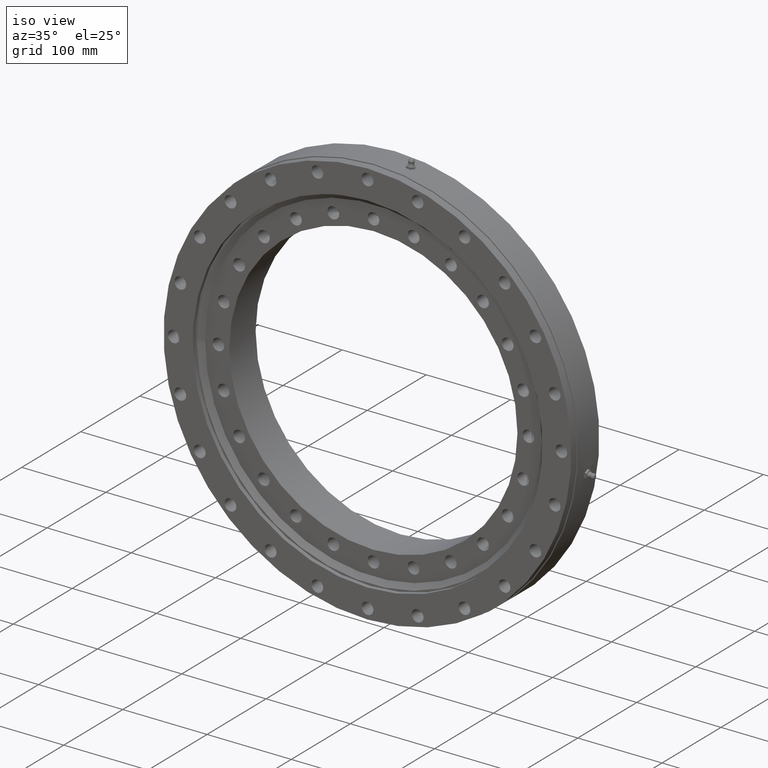
[diagram: clean part render]
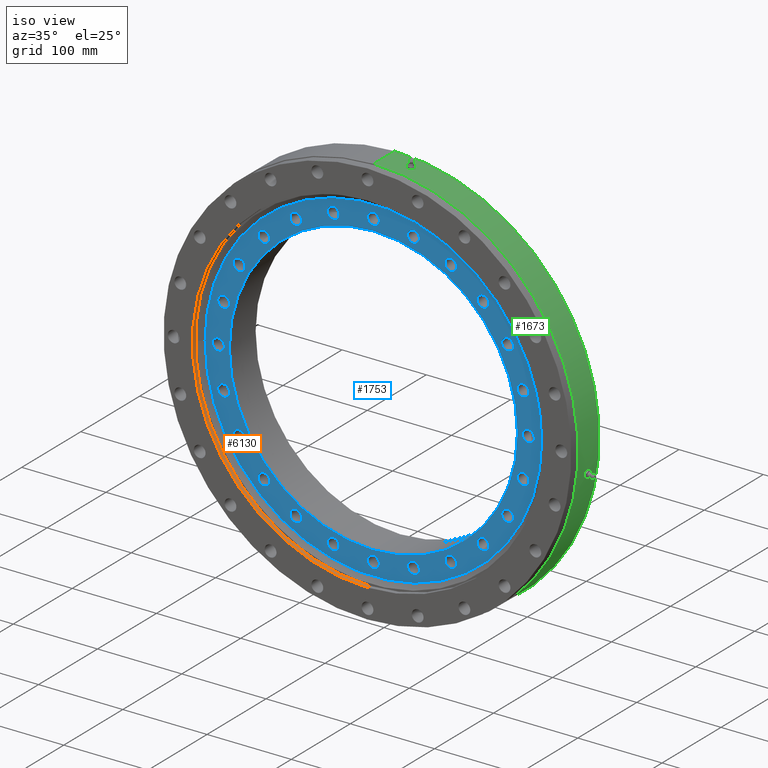
[diagram: same view with three faces highlighted in distinct colors, each labeled with its STEP entity id]
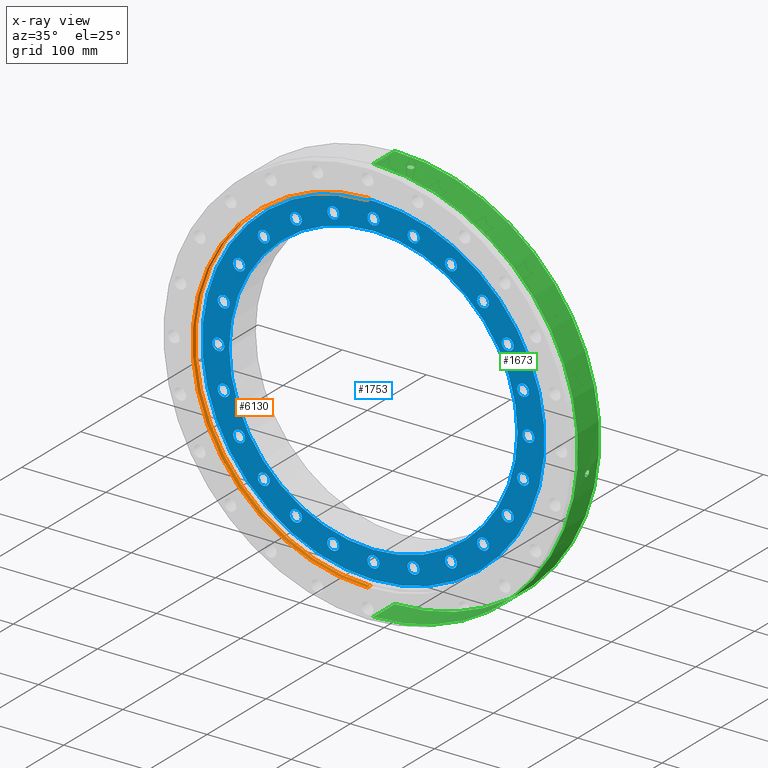
[diagram: x-ray of the same camera — body ghosted, the three highlighted faces saturated]
A machine part, iso view with three faces highlighted in distinct colors.
The next image is the same camera in x-ray (body ghosted, the three faces saturated) — at least one of them is partly hidden behind the body in this view.
Their STEP definitions:

[orange] entity #6130 — the highlighted cylindrical surface (partial cylindrical patch) has radius 207.75 mm, axis along (-0, 1, -0).
#30 = LINE ( 'NONE', #7833, #250 ) ;
#223 = EDGE_CURVE ( 'NONE', #4773, #1693, #1415, .T. ) ;
#250 = VECTOR ( 'NONE', #2840, 1000.000000000000000 ) ;
#797 = CIRCLE ( 'NONE', #5128, 207.7500000000000000 ) ;
#1330 = AXIS2_PLACEMENT_3D ( 'NONE', #7728, #7701, #7297 ) ;
#1415 = CIRCLE ( 'NONE', #1330, 207.7500000000000000 ) ;
#1439 = EDGE_CURVE ( 'NONE', #4773, #2530, #30, .T. ) ;
#1522 = CARTESIAN_POINT ( 'NONE',  ( 0.0000000000000000000, -28.00000000000003200, 207.7500000000000000 ) ) ;
#1621 = EDGE_LOOP ( 'NONE', ( #7050, #5510, #3688, #6953 ) ) ;
#1693 = VERTEX_POINT ( 'NONE', #1522 ) ;
#1999 = CARTESIAN_POINT ( 'NONE',  ( 0.0000000000000000000, 22.16364734299516900, 207.7500000000000000 ) ) ;
#2009 = DIRECTION ( 'NONE',  ( -0.0000000000000000000, 1.000000000000000000, -0.0000000000000000000 ) ) ;
#2114 = VECTOR ( 'NONE', #2009, 1000.000000000000000 ) ;
#2530 = VERTEX_POINT ( 'NONE', #3848 ) ;
#2673 = CARTESIAN_POINT ( 'NONE',  ( 0.0000000000000000000, -23.05000000000001500, 207.7500000000000000 ) ) ;
#2840 = DIRECTION ( 'NONE',  ( -0.0000000000000000000, 1.000000000000000000, -0.0000000000000000000 ) ) ;
#2873 = AXIS2_PLACEMENT_3D ( 'NONE', #4818, #4651, #7924 ) ;
#3234 = CARTESIAN_POINT ( 'NONE',  ( 0.0000000000000000000, -23.05000000000001500, 0.0000000000000000000 ) ) ;
#3247 = LINE ( 'NONE', #1999, #2114 ) ;
#3628 = CARTESIAN_POINT ( 'NONE',  ( 2.544203725228626200E-014, -28.00000000000003200, -207.7500000000000000 ) ) ;
#3688 = ORIENTED_EDGE ( 'NONE', *, *, #4759, .T. ) ;
#3811 = CYLINDRICAL_SURFACE ( 'NONE', #2873, 207.7500000000000000 ) ;
#3848 = CARTESIAN_POINT ( 'NONE',  ( 2.544203725228626200E-014, -23.05000000000001500, -207.7500000000000000 ) ) ;
#3866 = DIRECTION ( 'NONE',  ( 0.0000000000000000000, 0.0000000000000000000, 1.000000000000000000 ) ) ;
#4651 = DIRECTION ( 'NONE',  ( -0.0000000000000000000, 1.000000000000000000, -0.0000000000000000000 ) ) ;
#4759 = EDGE_CURVE ( 'NONE', #2530, #6572, #797, .T. ) ;
#4773 = VERTEX_POINT ( 'NONE', #3628 ) ;
#4818 = CARTESIAN_POINT ( 'NONE',  ( 0.0000000000000000000, 22.16364734299516900, 0.0000000000000000000 ) ) ;
#5128 = AXIS2_PLACEMENT_3D ( 'NONE', #3234, #6438, #3866 ) ;
#5360 = EDGE_CURVE ( 'NONE', #1693, #6572, #3247, .T. ) ;
#5510 = ORIENTED_EDGE ( 'NONE', *, *, #1439, .T. ) ;
#6026 = FACE_OUTER_BOUND ( 'NONE', #1621, .T. ) ;
#6130 = ADVANCED_FACE ( 'NONE', ( #6026 ), #3811, .F. ) ;
#6438 = DIRECTION ( 'NONE',  ( -0.0000000000000000000, 1.000000000000000000, -0.0000000000000000000 ) ) ;
#6572 = VERTEX_POINT ( 'NONE', #2673 ) ;
#6953 = ORIENTED_EDGE ( 'NONE', *, *, #5360, .F. ) ;
#7050 = ORIENTED_EDGE ( 'NONE', *, *, #223, .F. ) ;
#7297 = DIRECTION ( 'NONE',  ( 0.0000000000000000000, 0.0000000000000000000, 1.000000000000000000 ) ) ;
#7701 = DIRECTION ( 'NONE',  ( -0.0000000000000000000, 1.000000000000000000, -0.0000000000000000000 ) ) ;
#7728 = CARTESIAN_POINT ( 'NONE',  ( 0.0000000000000000000, -28.00000000000003200, 0.0000000000000000000 ) ) ;
#7833 = CARTESIAN_POINT ( 'NONE',  ( 2.544203725228626200E-014, 22.16364734299516900, -207.7500000000000000 ) ) ;
#7924 = DIRECTION ( 'NONE',  ( 0.0000000000000000000, 0.0000000000000000000, 1.000000000000000000 ) ) ;

[blue] entity #1753 — the highlighted planar face has unit normal (-0, 1, -0).
#15 = EDGE_LOOP ( 'NONE', ( #6399, #2959 ) ) ;
#23 = CIRCLE ( 'NONE', #1575, 6.999999999999994700 ) ;
#50 = DIRECTION ( 'NONE',  ( -0.7071067811865435800, 0.0000000000000000000, -0.7071067811865515700 ) ) ;
#89 = CARTESIAN_POINT ( 'NONE',  ( 177.7303520371887400, -18.00000000000002100, 54.62270429886321900 ) ) ;
#151 = DIRECTION ( 'NONE',  ( -3.081487911019577400E-033, 1.000000000000000000, -2.727064569436389100E-017 ) ) ;
#165 = AXIS2_PLACEMENT_3D ( 'NONE', #415, #1255, #343 ) ;
#168 = EDGE_CURVE ( 'NONE', #3982, #7983, #347, .T. ) ;
#174 = CARTESIAN_POINT ( 'NONE',  ( 91.99999999999900500, -18.00000000000002100, -152.3486742963372600 ) ) ;
#176 = EDGE_CURVE ( 'NONE', #1847, #5393, #6636, .T. ) ;
#181 = AXIS2_PLACEMENT_3D ( 'NONE', #6945, #6944, #7099 ) ;
#182 = ORIENTED_EDGE ( 'NONE', *, *, #6562, .T. ) ;
#189 = CARTESIAN_POINT ( 'NONE',  ( -159.3486742963376300, -18.00000000000002500, -98.99999999999845100 ) ) ;
#192 = AXIS2_PLACEMENT_3D ( 'NONE', #5696, #5709, #5658 ) ;
#196 = CARTESIAN_POINT ( 'NONE',  ( 130.1076477383239800, -18.00000000000002500, -137.1076477383255100 ) ) ;
#217 = AXIS2_PLACEMENT_3D ( 'NONE', #8164, #3517, #7459 ) ;
#237 = DIRECTION ( 'NONE',  ( 6.982962677686261200E-015, 0.0000000000000000000, -1.000000000000000000 ) ) ;
#252 = VERTEX_POINT ( 'NONE', #89 ) ;
#261 = DIRECTION ( 'NONE',  ( -3.081487911019577400E-033, 1.000000000000000000, -2.727064569436389700E-017 ) ) ;
#275 = VERTEX_POINT ( 'NONE', #196 ) ;
#291 = CIRCLE ( 'NONE', #5762, 7.000000000000002700 ) ;
#310 = EDGE_LOOP ( 'NONE', ( #182, #4551 ) ) ;
#317 = CARTESIAN_POINT ( 'NONE',  ( 47.62270429886402200, -18.00000000000001400, 177.7303520371885100 ) ) ;
#332 = DIRECTION ( 'NONE',  ( 0.8660254037844429300, 0.0000000000000000000, -0.4999999999999925600 ) ) ;
#343 = DIRECTION ( 'NONE',  ( -0.4999999999999940600, 0.0000000000000000000, -0.8660254037844420400 ) ) ;
#347 = CIRCLE ( 'NONE', #1038, 7.000000000000016900 ) ;
#351 = EDGE_LOOP ( 'NONE', ( #8279, #2267 ) ) ;
#352 = EDGE_CURVE ( 'NONE', #4922, #275, #23, .T. ) ;
#359 = AXIS2_PLACEMENT_3D ( 'NONE', #7214, #7821, #7812 ) ;
#363 = CARTESIAN_POINT ( 'NONE',  ( -177.7303520371891100, -18.00000000000002500, -40.62270429886197600 ) ) ;
#384 = CIRCLE ( 'NONE', #6763, 7.000000000000014200 ) ;
#415 = CARTESIAN_POINT ( 'NONE',  ( -92.00000000000137800, -18.00000000000002100, -159.3486742963359300 ) ) ;
#443 = DIRECTION ( 'NONE',  ( -0.5000000000000002200, 0.0000000000000000000, 0.8660254037844386000 ) ) ;
#466 = CARTESIAN_POINT ( 'NONE',  ( 159.3486742963369800, -18.00000000000001400, 84.99999999999954500 ) ) ;
#527 = DIRECTION ( 'NONE',  ( 1.540743955509788700E-033, 1.000000000000000000, -2.727064569436389700E-017 ) ) ;
#530 = EDGE_CURVE ( 'NONE', #4509, #5811, #4791, .T. ) ;
#550 = DIRECTION ( 'NONE',  ( 9.244463733058732100E-033, 1.000000000000000000, -2.727064569436388400E-017 ) ) ;
#551 = ORIENTED_EDGE ( 'NONE', *, *, #940, .F. ) ;
#569 = FACE_BOUND ( 'NONE', #310, .T. ) ;
#590 = VERTEX_POINT ( 'NONE', #4306 ) ;
#602 = CARTESIAN_POINT ( 'NONE',  ( 184.0000000000000000, -18.00000000000002100, -7.367466884364670800E-013 ) ) ;
#604 = CIRCLE ( 'NONE', #4521, 7.000000000000006200 ) ;
#631 = EDGE_CURVE ( 'NONE', #7772, #888, #3994, .T. ) ;
#640 = EDGE_CURVE ( 'NONE', #3434, #4897, #5922, .T. ) ;
#644 = DIRECTION ( 'NONE',  ( -3.081487911019577400E-033, 1.000000000000000000, -2.727064569436389400E-017 ) ) ;
#654 = DIRECTION ( 'NONE',  ( 3.081487911019577400E-033, 1.000000000000000000, -2.727064569436389700E-017 ) ) ;
#668 = DIRECTION ( 'NONE',  ( -3.081487911019577400E-033, 1.000000000000000000, -2.727064569436389700E-017 ) ) ;
#675 = DIRECTION ( 'NONE',  ( 0.5000000000000078800, 0.0000000000000000000, -0.8660254037844340400 ) ) ;
#701 = CARTESIAN_POINT ( 'NONE',  ( 47.62270429886258700, -18.00000000000002800, -184.7303520371889100 ) ) ;
#722 = CARTESIAN_POINT ( 'NONE',  ( 0.0000000000000000000, -18.00000000000001400, 203.2500000000000000 ) ) ;
#761 = AXIS2_PLACEMENT_3D ( 'NONE', #5688, #5635, #5650 ) ;
#765 = DIRECTION ( 'NONE',  ( -0.0000000000000000000, 1.000000000000000000, -2.727064569436389700E-017 ) ) ;
#779 = ORIENTED_EDGE ( 'NONE', *, *, #1935, .T. ) ;
#780 = DIRECTION ( 'NONE',  ( 0.0000000000000000000, 2.028916346171703900E-017, 1.000000000000000000 ) ) ;
#791 = CARTESIAN_POINT ( 'NONE',  ( -177.7303520371891100, -18.00000000000002500, -47.62270429886197600 ) ) ;
#798 = FACE_BOUND ( 'NONE', #3949, .T. ) ;
#804 = DIRECTION ( 'NONE',  ( 9.244463733058732100E-033, 1.000000000000000000, -2.727064569436389100E-017 ) ) ;
#807 = DIRECTION ( 'NONE',  ( -1.540743955509788700E-033, 1.000000000000000000, -2.727064569436389100E-017 ) ) ;
#819 = AXIS2_PLACEMENT_3D ( 'NONE', #4539, #4541, #4546 ) ;
#822 = VERTEX_POINT ( 'NONE', #5752 ) ;
#854 = DIRECTION ( 'NONE',  ( 0.4999999999999879500, 0.0000000000000000000, 0.8660254037844457000 ) ) ;
#858 = CARTESIAN_POINT ( 'NONE',  ( 47.62270429886258700, -18.00000000000002800, -177.7303520371889100 ) ) ;
#859 = CARTESIAN_POINT ( 'NONE',  ( -159.3486742963376300, -18.00000000000002500, -84.99999999999843700 ) ) ;
#868 = ORIENTED_EDGE ( 'NONE', *, *, #1359, .T. ) ;
#881 = DIRECTION ( 'NONE',  ( 0.2588190451025280100, 0.0000000000000000000, -0.9659258262890663100 ) ) ;
#888 = VERTEX_POINT ( 'NONE', #6220 ) ;
#904 = ORIENTED_EDGE ( 'NONE', *, *, #3573, .T. ) ;
#911 = VERTEX_POINT ( 'NONE', #6113 ) ;
#917 = DIRECTION ( 'NONE',  ( 1.540743955509788700E-033, 1.000000000000000000, -2.727064569436389700E-017 ) ) ;
#936 = DIRECTION ( 'NONE',  ( 0.2588190451025084700, 0.0000000000000000000, 0.9659258262890715300 ) ) ;
#940 = EDGE_CURVE ( 'NONE', #5393, #1847, #7625, .T. ) ;
#970 = CIRCLE ( 'NONE', #5526, 7.000000000000013300 ) ;
#973 = CARTESIAN_POINT ( 'NONE',  ( -91.99999999999786800, -18.00000000000001400, 159.3486742963379200 ) ) ;
#994 = FACE_BOUND ( 'NONE', #7683, .T. ) ;
#1006 = DIRECTION ( 'NONE',  ( 1.000000000000000000, 0.0000000000000000000, 1.047444401652940600E-014 ) ) ;
#1013 = DIRECTION ( 'NONE',  ( -1.540743955509788700E-033, 1.000000000000000000, -2.727064569436389700E-017 ) ) ;
#1021 = DIRECTION ( 'NONE',  ( -0.5000000000000002200, 0.0000000000000000000, 0.8660254037844386000 ) ) ;
#1038 = AXIS2_PLACEMENT_3D ( 'NONE', #6758, #6810, #6847 ) ;
#1039 = AXIS2_PLACEMENT_3D ( 'NONE', #7949, #8194, #237 ) ;
#1072 = CARTESIAN_POINT ( 'NONE',  ( 2.664535259100375300E-012, -18.00000000000001400, 184.0000000000000000 ) ) ;
#1074 = DIRECTION ( 'NONE',  ( -0.2588190451025215200, 0.0000000000000000000, 0.9659258262890680900 ) ) ;
#1079 = CARTESIAN_POINT ( 'NONE',  ( -47.62270429886525100, -18.00000000000002800, -177.7303520371881700 ) ) ;
#1088 = ORIENTED_EDGE ( 'NONE', *, *, #3074, .T. ) ;
#1096 = DIRECTION ( 'NONE',  ( 3.081487911019577400E-033, 1.000000000000000000, -2.727064569436389700E-017 ) ) ;
#1100 = CARTESIAN_POINT ( 'NONE',  ( 184.0000000000000000, -18.00000000000002100, -7.367466884364670800E-013 ) ) ;
#1111 = DIRECTION ( 'NONE',  ( 1.540743955509788700E-033, 1.000000000000000000, -2.727064569436389100E-017 ) ) ;
#1112 = CARTESIAN_POINT ( 'NONE',  ( -47.62270429886525100, -18.00000000000002800, -177.7303520371881700 ) ) ;
#1118 = CARTESIAN_POINT ( 'NONE',  ( -47.62270429886135800, -18.00000000000001400, 177.7303520371892200 ) ) ;
#1131 = DIRECTION ( 'NONE',  ( -0.8660254037844394800, 0.0000000000000000000, 0.4999999999999987800 ) ) ;
#1136 = CARTESIAN_POINT ( 'NONE',  ( 91.99999999999900500, -18.00000000000002100, -159.3486742963372900 ) ) ;
#1160 = CARTESIAN_POINT ( 'NONE',  ( -130.1076477383231000, -18.00000000000001400, 130.1076477383264200 ) ) ;
#1165 = ORIENTED_EDGE ( 'NONE', *, *, #2161, .T. ) ;
#1181 = DIRECTION ( 'NONE',  ( -1.540743955509788700E-033, 1.000000000000000000, -2.727064569436389100E-017 ) ) ;
#1201 = AXIS2_PLACEMENT_3D ( 'NONE', #4606, #4637, #4591 ) ;
#1226 = CARTESIAN_POINT ( 'NONE',  ( 92.00000000000025600, -18.00000000000001400, 159.3486742963365500 ) ) ;
#1233 = CARTESIAN_POINT ( 'NONE',  ( -47.62270429886525100, -18.00000000000002800, -170.7303520371881700 ) ) ;
#1236 = DIRECTION ( 'NONE',  ( -1.000000000000000000, 0.0000000000000000000, -3.491481338843116800E-015 ) ) ;
#1244 = VERTEX_POINT ( 'NONE', #1419 ) ;
#1248 = CARTESIAN_POINT ( 'NONE',  ( -177.7303520371880000, -18.00000000000002100, 54.62270429886588400 ) ) ;
#1251 = EDGE_CURVE ( 'NONE', #5669, #2048, #2499, .T. ) ;
#1255 = DIRECTION ( 'NONE',  ( -1.540743955509788700E-033, 1.000000000000000000, -2.727064569436390000E-017 ) ) ;
#1260 = ORIENTED_EDGE ( 'NONE', *, *, #530, .T. ) ;
#1263 = EDGE_CURVE ( 'NONE', #822, #911, #5622, .T. ) ;
#1270 = DIRECTION ( 'NONE',  ( -0.7071067811865494600, 0.0000000000000000000, 0.7071067811865455700 ) ) ;
#1285 = EDGE_LOOP ( 'NONE', ( #4095, #8339 ) ) ;
#1349 = ORIENTED_EDGE ( 'NONE', *, *, #6661, .T. ) ;
#1359 = EDGE_CURVE ( 'NONE', #2048, #5669, #3516, .T. ) ;
#1377 = FACE_BOUND ( 'NONE', #2823, .T. ) ;
#1384 = ORIENTED_EDGE ( 'NONE', *, *, #1872, .T. ) ;
#1419 = CARTESIAN_POINT ( 'NONE',  ( -92.00000000000137800, -18.00000000000002100, -152.3486742963359300 ) ) ;
#1457 = CARTESIAN_POINT ( 'NONE',  ( -159.3486742963355900, -18.00000000000001400, 99.00000000000194700 ) ) ;
#1461 = ORIENTED_EDGE ( 'NONE', *, *, #7648, .T. ) ;
#1469 = DIRECTION ( 'NONE',  ( -2.189528850507526700E-047, 1.000000000000000000, -2.727064569436389100E-017 ) ) ;
#1473 = DIRECTION ( 'NONE',  ( 6.982962677686261200E-015, 0.0000000000000000000, -1.000000000000000000 ) ) ;
#1502 = CIRCLE ( 'NONE', #1808, 7.000000000000003600 ) ;
#1565 = AXIS2_PLACEMENT_3D ( 'NONE', #2162, #2145, #2127 ) ;
#1575 = AXIS2_PLACEMENT_3D ( 'NONE', #4098, #5452, #5455 ) ;
#1576 = DIRECTION ( 'NONE',  ( 0.4999999999999879500, 0.0000000000000000000, 0.8660254037844457000 ) ) ;
#1596 = CARTESIAN_POINT ( 'NONE',  ( -1.379670126406102400E-012, -18.00000000000002800, -177.0000000000000000 ) ) ;
#1658 = FACE_BOUND ( 'NONE', #2984, .T. ) ;
#1696 = EDGE_CURVE ( 'NONE', #6157, #7219, #7750, .T. ) ;
#1709 = EDGE_LOOP ( 'NONE', ( #6184, #1384 ) ) ;
#1731 = VERTEX_POINT ( 'NONE', #2259 ) ;
#1733 = EDGE_CURVE ( 'NONE', #7235, #5176, #2598, .T. ) ;
#1753 = ADVANCED_FACE ( 'NONE', ( #4602, #6542, #4927, #7881, #2240, #4804, #569, #1658, #5957, #4667, #6000, #4252, #2656, #994, #7598, #5789, #4062, #2467, #798, #6354, #6186, #1377, #8028, #5639, #4657, #3026 ), #7797, .F. ) ;
#1795 = CARTESIAN_POINT ( 'NONE',  ( 2.489094619266995000E-014, -18.00000000000002800, -203.2500000000000000 ) ) ;
#1797 = VERTEX_POINT ( 'NONE', #7970 ) ;
#1808 = AXIS2_PLACEMENT_3D ( 'NONE', #4485, #151, #3849 ) ;
#1828 = EDGE_LOOP ( 'NONE', ( #5327, #2220 ) ) ;
#1847 = VERTEX_POINT ( 'NONE', #722 ) ;
#1872 = EDGE_CURVE ( 'NONE', #6917, #590, #7372, .T. ) ;
#1891 = AXIS2_PLACEMENT_3D ( 'NONE', #3327, #644, #5188 ) ;
#1907 = VERTEX_POINT ( 'NONE', #4470 ) ;
#1930 = ORIENTED_EDGE ( 'NONE', *, *, #5290, .T. ) ;
#1935 = EDGE_CURVE ( 'NONE', #252, #5117, #5164, .T. ) ;
#1957 = ORIENTED_EDGE ( 'NONE', *, *, #1251, .T. ) ;
#1968 = CARTESIAN_POINT ( 'NONE',  ( -159.3486742963376300, -18.00000000000002500, -91.99999999999845100 ) ) ;
#1972 = CARTESIAN_POINT ( 'NONE',  ( -159.3486742963355900, -18.00000000000001400, 85.00000000000193300 ) ) ;
#2041 = EDGE_CURVE ( 'NONE', #2235, #1907, #7262, .T. ) ;
#2045 = EDGE_CURVE ( 'NONE', #7555, #4531, #2362, .T. ) ;
#2048 = VERTEX_POINT ( 'NONE', #1972 ) ;
#2056 = DIRECTION ( 'NONE',  ( -0.9659258262890670900, 0.0000000000000000000, -0.2588190451025252400 ) ) ;
#2064 = DIRECTION ( 'NONE',  ( -0.2588190451025140800, 0.0000000000000000000, -0.9659258262890700900 ) ) ;
#2068 = DIRECTION ( 'NONE',  ( 1.540743955509788700E-033, 1.000000000000000000, -2.727064569436389100E-017 ) ) ;
#2075 = CARTESIAN_POINT ( 'NONE',  ( 0.0000000000000000000, -18.00000000000001400, -3.553121410813607700E-016 ) ) ;
#2102 = CARTESIAN_POINT ( 'NONE',  ( 47.62270429886402200, -18.00000000000001400, 184.7303520371885100 ) ) ;
#2127 = DIRECTION ( 'NONE',  ( -0.4999999999999940600, 0.0000000000000000000, -0.8660254037844420400 ) ) ;
#2145 = DIRECTION ( 'NONE',  ( -1.540743955509788700E-033, 1.000000000000000000, -2.727064569436390000E-017 ) ) ;
#2149 = ORIENTED_EDGE ( 'NONE', *, *, #352, .T. ) ;
#2161 = EDGE_CURVE ( 'NONE', #1244, #5592, #3017, .T. ) ;
#2162 = CARTESIAN_POINT ( 'NONE',  ( -92.00000000000137800, -18.00000000000002100, -159.3486742963359300 ) ) ;
#2185 = EDGE_CURVE ( 'NONE', #7247, #6290, #8018, .T. ) ;
#2220 = ORIENTED_EDGE ( 'NONE', *, *, #6270, .T. ) ;
#2226 = CARTESIAN_POINT ( 'NONE',  ( -130.1076477383259400, -18.00000000000002500, -130.1076477383235200 ) ) ;
#2235 = VERTEX_POINT ( 'NONE', #2678 ) ;
#2240 = FACE_BOUND ( 'NONE', #3740, .T. ) ;
#2242 = DIRECTION ( 'NONE',  ( 0.9659258262890656500, 0.0000000000000000000, 0.2588190451025307900 ) ) ;
#2259 = CARTESIAN_POINT ( 'NONE',  ( -130.1076477383231000, -18.00000000000001400, 123.1076477383264200 ) ) ;
#2267 = ORIENTED_EDGE ( 'NONE', *, *, #4198, .T. ) ;
#2362 = CIRCLE ( 'NONE', #7668, 7.000000000000008900 ) ;
#2405 = ORIENTED_EDGE ( 'NONE', *, *, #4340, .T. ) ;
#2467 = FACE_BOUND ( 'NONE', #2849, .T. ) ;
#2471 = EDGE_CURVE ( 'NONE', #5176, #7235, #4332, .T. ) ;
#2478 = CARTESIAN_POINT ( 'NONE',  ( 130.1076477383239800, -18.00000000000002500, -123.1076477383255000 ) ) ;
#2494 = CARTESIAN_POINT ( 'NONE',  ( -130.1076477383231000, -18.00000000000001400, 137.1076477383264200 ) ) ;
#2499 = CIRCLE ( 'NONE', #7923, 6.999999999999995600 ) ;
#2520 = CIRCLE ( 'NONE', #6472, 7.000000000000016900 ) ;
#2523 = CARTESIAN_POINT ( 'NONE',  ( 177.7303520371887400, -18.00000000000002100, 40.62270429886320500 ) ) ;
#2562 = VERTEX_POINT ( 'NONE', #3897 ) ;
#2593 = AXIS2_PLACEMENT_3D ( 'NONE', #5467, #5410, #2056 ) ;
#2597 = CARTESIAN_POINT ( 'NONE',  ( 2.665392511859778400E-012, -18.00000000000001400, 177.0000000000000000 ) ) ;
#2598 = CIRCLE ( 'NONE', #6849, 7.000000000000016000 ) ;
#2635 = ORIENTED_EDGE ( 'NONE', *, *, #2185, .T. ) ;
#2646 = DIRECTION ( 'NONE',  ( 3.081487911019577400E-033, 1.000000000000000000, -2.727064569436389700E-017 ) ) ;
#2655 = CIRCLE ( 'NONE', #2815, 7.000000000000001800 ) ;
#2656 = FACE_BOUND ( 'NONE', #351, .T. ) ;
#2660 = DIRECTION ( 'NONE',  ( 3.081487911019577400E-033, 1.000000000000000000, -2.727064569436389400E-017 ) ) ;
#2678 = CARTESIAN_POINT ( 'NONE',  ( -47.62270429886135800, -18.00000000000001400, 184.7303520371892500 ) ) ;
#2689 = ORIENTED_EDGE ( 'NONE', *, *, #2471, .T. ) ;
#2691 = AXIS2_PLACEMENT_3D ( 'NONE', #6662, #6888, #6642 ) ;
#2715 = CIRCLE ( 'NONE', #6115, 6.999999999999994700 ) ;
#2770 = DIRECTION ( 'NONE',  ( -0.7071067811865435800, 0.0000000000000000000, -0.7071067811865515700 ) ) ;
#2775 = DIRECTION ( 'NONE',  ( 0.0000000000000000000, 2.028916346171703900E-017, 1.000000000000000000 ) ) ;
#2784 = DIRECTION ( 'NONE',  ( 0.0000000000000000000, 1.000000000000000000, -2.727064569436389400E-017 ) ) ;
#2791 = EDGE_CURVE ( 'NONE', #3080, #3151, #7569, .T. ) ;
#2799 = CIRCLE ( 'NONE', #4868, 7.000000000000006200 ) ;
#2811 = CARTESIAN_POINT ( 'NONE',  ( -177.7303520371880000, -18.00000000000002100, 40.62270429886587000 ) ) ;
#2815 = AXIS2_PLACEMENT_3D ( 'NONE', #791, #804, #7708 ) ;
#2817 = EDGE_CURVE ( 'NONE', #888, #7772, #970, .T. ) ;
#2823 = EDGE_LOOP ( 'NONE', ( #4120, #1461 ) ) ;
#2837 = CIRCLE ( 'NONE', #2593, 7.000000000000001800 ) ;
#2849 = EDGE_LOOP ( 'NONE', ( #5232, #5464 ) ) ;
#2878 = CARTESIAN_POINT ( 'NONE',  ( 159.3486742963362400, -18.00000000000002500, -99.00000000000082400 ) ) ;
#2910 = ORIENTED_EDGE ( 'NONE', *, *, #6324, .T. ) ;
#2926 = EDGE_CURVE ( 'NONE', #6990, #3000, #5148, .T. ) ;
#2935 = VERTEX_POINT ( 'NONE', #6881 ) ;
#2956 = VERTEX_POINT ( 'NONE', #7604 ) ;
#2959 = ORIENTED_EDGE ( 'NONE', *, *, #168, .T. ) ;
#2962 = CARTESIAN_POINT ( 'NONE',  ( -130.1076477383231000, -18.00000000000001400, 130.1076477383264200 ) ) ;
#2984 = EDGE_LOOP ( 'NONE', ( #1349, #2910 ) ) ;
#3000 = VERTEX_POINT ( 'NONE', #3965 ) ;
#3002 = DIRECTION ( 'NONE',  ( 0.0000000000000000000, 1.000000000000000000, -2.727064569436390300E-017 ) ) ;
#3017 = CIRCLE ( 'NONE', #1565, 7.000000000000006200 ) ;
#3024 = EDGE_CURVE ( 'NONE', #1907, #2235, #2715, .T. ) ;
#3026 = FACE_BOUND ( 'NONE', #1828, .T. ) ;
#3028 = CARTESIAN_POINT ( 'NONE',  ( 130.1076477383239800, -18.00000000000002500, -130.1076477383255100 ) ) ;
#3053 = AXIS2_PLACEMENT_3D ( 'NONE', #4604, #2660, #7481 ) ;
#3074 = EDGE_CURVE ( 'NONE', #3725, #1731, #4118, .T. ) ;
#3080 = VERTEX_POINT ( 'NONE', #6919 ) ;
#3096 = AXIS2_PLACEMENT_3D ( 'NONE', #317, #4628, #936 ) ;
#3098 = DIRECTION ( 'NONE',  ( -0.7071067811865494600, 0.0000000000000000000, 0.7071067811865455700 ) ) ;
#3127 = AXIS2_PLACEMENT_3D ( 'NONE', #8007, #3396, #332 ) ;
#3151 = VERTEX_POINT ( 'NONE', #2102 ) ;
#3169 = AXIS2_PLACEMENT_3D ( 'NONE', #5408, #7829, #2775 ) ;
#3205 = VERTEX_POINT ( 'NONE', #5476 ) ;
#3246 = CARTESIAN_POINT ( 'NONE',  ( -91.99999999999786800, -18.00000000000001400, 159.3486742963379200 ) ) ;
#3273 = ORIENTED_EDGE ( 'NONE', *, *, #8079, .T. ) ;
#3274 = EDGE_CURVE ( 'NONE', #5117, #252, #7054, .T. ) ;
#3293 = EDGE_LOOP ( 'NONE', ( #904, #4676 ) ) ;
#3320 = EDGE_CURVE ( 'NONE', #2935, #2562, #7159, .T. ) ;
#3327 = CARTESIAN_POINT ( 'NONE',  ( 130.1076477383250300, -18.00000000000001400, 130.1076477383244600 ) ) ;
#3351 = DIRECTION ( 'NONE',  ( 0.7071067811865535700, 0.0000000000000000000, -0.7071067811865415800 ) ) ;
#3364 = VERTEX_POINT ( 'NONE', #7413 ) ;
#3386 = CIRCLE ( 'NONE', #7384, 7.000000000000008900 ) ;
#3396 = DIRECTION ( 'NONE',  ( -3.081487911019577400E-033, 1.000000000000000000, -2.727064569436389100E-017 ) ) ;
#3420 = DIRECTION ( 'NONE',  ( -1.540743955509788700E-033, 1.000000000000000000, -2.727064569436389100E-017 ) ) ;
#3434 = VERTEX_POINT ( 'NONE', #6075 ) ;
#3488 = CARTESIAN_POINT ( 'NONE',  ( -130.1076477383259400, -18.00000000000002500, -130.1076477383235200 ) ) ;
#3516 = CIRCLE ( 'NONE', #7500, 6.999999999999995600 ) ;
#3517 = DIRECTION ( 'NONE',  ( -3.081487911019577400E-033, 1.000000000000000000, -2.727064569436389100E-017 ) ) ;
#3523 = ORIENTED_EDGE ( 'NONE', *, *, #5013, .T. ) ;
#3552 = CIRCLE ( 'NONE', #7339, 7.000000000000008000 ) ;
#3573 = EDGE_CURVE ( 'NONE', #7735, #8187, #8254, .T. ) ;
#3592 = EDGE_CURVE ( 'NONE', #911, #822, #3386, .T. ) ;
#3595 = ORIENTED_EDGE ( 'NONE', *, *, #3757, .T. ) ;
#3618 = ORIENTED_EDGE ( 'NONE', *, *, #3904, .T. ) ;
#3656 = EDGE_CURVE ( 'NONE', #3205, #3364, #6156, .T. ) ;
#3707 = EDGE_CURVE ( 'NONE', #590, #6917, #3552, .T. ) ;
#3711 = EDGE_LOOP ( 'NONE', ( #4820, #7134 ) ) ;
#3725 = VERTEX_POINT ( 'NONE', #2494 ) ;
#3740 = EDGE_LOOP ( 'NONE', ( #779, #6469 ) ) ;
#3743 = CIRCLE ( 'NONE', #6163, 7.000000000000014200 ) ;
#3757 = EDGE_CURVE ( 'NONE', #7667, #5214, #2837, .T. ) ;
#3808 = EDGE_LOOP ( 'NONE', ( #1088, #3939 ) ) ;
#3810 = DIRECTION ( 'NONE',  ( 3.081487911019577400E-033, 1.000000000000000000, -2.727064569436389700E-017 ) ) ;
#3847 = ORIENTED_EDGE ( 'NONE', *, *, #2817, .T. ) ;
#3849 = DIRECTION ( 'NONE',  ( 0.9659258262890708700, 0.0000000000000000000, -0.2588190451025113000 ) ) ;
#3897 = CARTESIAN_POINT ( 'NONE',  ( -184.0000000000000000, -18.00000000000002100, 7.000000000002028600 ) ) ;
#3904 = EDGE_CURVE ( 'NONE', #5811, #4509, #2799, .T. ) ;
#3939 = ORIENTED_EDGE ( 'NONE', *, *, #5073, .T. ) ;
#3949 = EDGE_LOOP ( 'NONE', ( #2689, #5256 ) ) ;
#3965 = CARTESIAN_POINT ( 'NONE',  ( 91.99999999999900500, -18.00000000000002100, -166.3486742963372900 ) ) ;
#3982 = VERTEX_POINT ( 'NONE', #189 ) ;
#3994 = CIRCLE ( 'NONE', #192, 7.000000000000013300 ) ;
#4028 = EDGE_LOOP ( 'NONE', ( #3595, #2405 ) ) ;
#4062 = FACE_BOUND ( 'NONE', #4028, .T. ) ;
#4095 = ORIENTED_EDGE ( 'NONE', *, *, #1263, .T. ) ;
#4098 = CARTESIAN_POINT ( 'NONE',  ( 130.1076477383239800, -18.00000000000002500, -130.1076477383255100 ) ) ;
#4118 = CIRCLE ( 'NONE', #6224, 6.999999999999994700 ) ;
#4120 = ORIENTED_EDGE ( 'NONE', *, *, #4156, .T. ) ;
#4132 = EDGE_LOOP ( 'NONE', ( #7792, #2635 ) ) ;
#4156 = EDGE_CURVE ( 'NONE', #1797, #6259, #5947, .T. ) ;
#4161 = EDGE_CURVE ( 'NONE', #5592, #1244, #7926, .T. ) ;
#4198 = EDGE_CURVE ( 'NONE', #4531, #7555, #7552, .T. ) ;
#4223 = VERTEX_POINT ( 'NONE', #7174 ) ;
#4252 = FACE_BOUND ( 'NONE', #3293, .T. ) ;
#4297 = CARTESIAN_POINT ( 'NONE',  ( -177.7303520371880000, -18.00000000000002100, 47.62270429886587700 ) ) ;
#4304 = DIRECTION ( 'NONE',  ( 3.081487911019577400E-033, 1.000000000000000000, -2.727064569436389400E-017 ) ) ;
#4306 = CARTESIAN_POINT ( 'NONE',  ( 47.62270429886258700, -18.00000000000002800, -170.7303520371888800 ) ) ;
#4313 = DIRECTION ( 'NONE',  ( -0.9659258262890690900, 0.0000000000000000000, 0.2588190451025177400 ) ) ;
#4322 = AXIS2_PLACEMENT_3D ( 'NONE', #4297, #4304, #4313 ) ;
#4332 = CIRCLE ( 'NONE', #4322, 7.000000000000016000 ) ;
#4340 = EDGE_CURVE ( 'NONE', #5214, #7667, #2655, .T. ) ;
#4376 = CARTESIAN_POINT ( 'NONE',  ( -92.00000000000137800, -18.00000000000002100, -166.3486742963359300 ) ) ;
#4389 = EDGE_CURVE ( 'NONE', #2562, #2935, #5023, .T. ) ;
#4427 = ORIENTED_EDGE ( 'NONE', *, *, #4161, .T. ) ;
#4467 = DIRECTION ( 'NONE',  ( -0.8660254037844394800, 0.0000000000000000000, 0.4999999999999987800 ) ) ;
#4470 = CARTESIAN_POINT ( 'NONE',  ( -47.62270429886135800, -18.00000000000001400, 170.7303520371892200 ) ) ;
#4472 = EDGE_CURVE ( 'NONE', #8187, #7735, #604, .T. ) ;
#4485 = CARTESIAN_POINT ( 'NONE',  ( 177.7303520371883400, -18.00000000000002500, -47.62270429886463300 ) ) ;
#4509 = VERTEX_POINT ( 'NONE', #6649 ) ;
#4521 = AXIS2_PLACEMENT_3D ( 'NONE', #6160, #1469, #1473 ) ;
#4531 = VERTEX_POINT ( 'NONE', #6504 ) ;
#4534 = ORIENTED_EDGE ( 'NONE', *, *, #3024, .T. ) ;
#4539 = CARTESIAN_POINT ( 'NONE',  ( 2.664535259100375300E-012, -18.00000000000001400, 184.0000000000000000 ) ) ;
#4541 = DIRECTION ( 'NONE',  ( 0.0000000000000000000, 1.000000000000000000, -2.727064569436389700E-017 ) ) ;
#4546 = DIRECTION ( 'NONE',  ( 0.0000000000000000000, 0.0000000000000000000, 1.000000000000000000 ) ) ;
#4551 = ORIENTED_EDGE ( 'NONE', *, *, #640, .T. ) ;
#4591 = DIRECTION ( 'NONE',  ( 0.0000000000000000000, 3.413969940421760600E-017, 1.000000000000000000 ) ) ;
#4600 = CARTESIAN_POINT ( 'NONE',  ( -159.3486742963355900, -18.00000000000001400, 92.00000000000194700 ) ) ;
#4602 = FACE_BOUND ( 'NONE', #3711, .T. ) ;
#4604 = CARTESIAN_POINT ( 'NONE',  ( -184.0000000000000000, -18.00000000000002100, 2.022593564375737300E-012 ) ) ;
#4606 = CARTESIAN_POINT ( 'NONE',  ( 0.0000000000000000000, -18.00000000000002100, -3.553121410813607700E-016 ) ) ;
#4623 = CARTESIAN_POINT ( 'NONE',  ( -159.3486742963355900, -18.00000000000001400, 92.00000000000194700 ) ) ;
#4628 = DIRECTION ( 'NONE',  ( -1.540743955509788700E-033, 1.000000000000000000, -2.727064569436389700E-017 ) ) ;
#4637 = DIRECTION ( 'NONE',  ( -0.0000000000000000000, 1.000000000000000000, -2.727064569436389700E-017 ) ) ;
#4643 = AXIS2_PLACEMENT_3D ( 'NONE', #973, #917, #1021 ) ;
#4657 = FACE_OUTER_BOUND ( 'NONE', #6461, .T. ) ;
#4667 = FACE_BOUND ( 'NONE', #7858, .T. ) ;
#4676 = ORIENTED_EDGE ( 'NONE', *, *, #4472, .T. ) ;
#4791 = CIRCLE ( 'NONE', #819, 7.000000000000006200 ) ;
#4804 = FACE_BOUND ( 'NONE', #8363, .T. ) ;
#4820 = ORIENTED_EDGE ( 'NONE', *, *, #5681, .T. ) ;
#4868 = AXIS2_PLACEMENT_3D ( 'NONE', #1072, #7624, #5322 ) ;
#4897 = VERTEX_POINT ( 'NONE', #5248 ) ;
#4922 = VERTEX_POINT ( 'NONE', #2478 ) ;
#4927 = FACE_BOUND ( 'NONE', #8150, .T. ) ;
#4936 = CARTESIAN_POINT ( 'NONE',  ( 184.0000000000000000, -18.00000000000002100, 6.999999999999269900 ) ) ;
#4987 = DIRECTION ( 'NONE',  ( 0.0000000000000000000, 1.000000000000000000, -2.727064569436389400E-017 ) ) ;
#4997 = EDGE_CURVE ( 'NONE', #6290, #7247, #384, .T. ) ;
#5011 = EDGE_LOOP ( 'NONE', ( #1260, #3618 ) ) ;
#5013 = EDGE_CURVE ( 'NONE', #275, #4922, #6430, .T. ) ;
#5023 = CIRCLE ( 'NONE', #8185, 7.000000000000006200 ) ;
#5073 = EDGE_CURVE ( 'NONE', #1731, #3725, #5743, .T. ) ;
#5117 = VERTEX_POINT ( 'NONE', #2523 ) ;
#5148 = CIRCLE ( 'NONE', #181, 7.000000000000007100 ) ;
#5151 = ORIENTED_EDGE ( 'NONE', *, *, #631, .T. ) ;
#5164 = CIRCLE ( 'NONE', #8283, 7.000000000000012400 ) ;
#5165 = CARTESIAN_POINT ( 'NONE',  ( 47.62270429886258700, -18.00000000000002800, -177.7303520371889100 ) ) ;
#5176 = VERTEX_POINT ( 'NONE', #1248 ) ;
#5188 = DIRECTION ( 'NONE',  ( 0.7071067811865395800, 0.0000000000000000000, 0.7071067811865554600 ) ) ;
#5214 = VERTEX_POINT ( 'NONE', #7830 ) ;
#5232 = ORIENTED_EDGE ( 'NONE', *, *, #4389, .T. ) ;
#5248 = CARTESIAN_POINT ( 'NONE',  ( 177.7303520371883400, -18.00000000000002500, -40.62270429886463300 ) ) ;
#5256 = ORIENTED_EDGE ( 'NONE', *, *, #1733, .T. ) ;
#5290 = EDGE_CURVE ( 'NONE', #3000, #6990, #7244, .T. ) ;
#5301 = AXIS2_PLACEMENT_3D ( 'NONE', #602, #668, #1006 ) ;
#5312 = AXIS2_PLACEMENT_3D ( 'NONE', #2962, #2646, #3098 ) ;
#5322 = DIRECTION ( 'NONE',  ( 0.0000000000000000000, 0.0000000000000000000, 1.000000000000000000 ) ) ;
#5321 = DIRECTION ( 'NONE',  ( 1.540743955509788700E-033, 1.000000000000000000, -2.727064569436389700E-017 ) ) ;
#5327 = ORIENTED_EDGE ( 'NONE', *, *, #1696, .T. ) ;
#5342 = CARTESIAN_POINT ( 'NONE',  ( 0.0000000000000000000, -18.00000000000001400, 171.0000000000000300 ) ) ;
#5348 = DIRECTION ( 'NONE',  ( -0.2588190451025215200, 0.0000000000000000000, 0.9659258262890680900 ) ) ;
#5378 = CARTESIAN_POINT ( 'NONE',  ( -91.99999999999786800, -18.00000000000001400, 152.3486742963379200 ) ) ;
#5381 = AXIS2_PLACEMENT_3D ( 'NONE', #5567, #7709, #5431 ) ;
#5393 = VERTEX_POINT ( 'NONE', #1795 ) ;
#5408 = CARTESIAN_POINT ( 'NONE',  ( 0.0000000000000000000, -18.00000000000001400, -3.553121410813607700E-016 ) ) ;
#5410 = DIRECTION ( 'NONE',  ( 9.244463733058732100E-033, 1.000000000000000000, -2.727064569436389100E-017 ) ) ;
#5431 = DIRECTION ( 'NONE',  ( 0.2588190451025084700, 0.0000000000000000000, 0.9659258262890715300 ) ) ;
#5447 = EDGE_CURVE ( 'NONE', #7983, #3982, #2520, .T. ) ;
#5452 = DIRECTION ( 'NONE',  ( 0.0000000000000000000, 1.000000000000000000, -2.727064569436390300E-017 ) ) ;
#5455 = DIRECTION ( 'NONE',  ( 0.7071067811865535700, 0.0000000000000000000, -0.7071067811865415800 ) ) ;
#5464 = ORIENTED_EDGE ( 'NONE', *, *, #3320, .T. ) ;
#5467 = CARTESIAN_POINT ( 'NONE',  ( -177.7303520371891100, -18.00000000000002500, -47.62270429886197600 ) ) ;
#5476 = CARTESIAN_POINT ( 'NONE',  ( 130.1076477383250300, -18.00000000000001400, 137.1076477383244600 ) ) ;
#5492 = CIRCLE ( 'NONE', #217, 6.999999999999999100 ) ;
#5526 = AXIS2_PLACEMENT_3D ( 'NONE', #7279, #7425, #7304 ) ;
#5541 = AXIS2_PLACEMENT_3D ( 'NONE', #6420, #6431, #6412 ) ;
#5567 = CARTESIAN_POINT ( 'NONE',  ( 47.62270429886402200, -18.00000000000001400, 177.7303520371885100 ) ) ;
#5568 = ORIENTED_EDGE ( 'NONE', *, *, #8176, .T. ) ;
#5592 = VERTEX_POINT ( 'NONE', #4376 ) ;
#5622 = CIRCLE ( 'NONE', #8282, 7.000000000000008900 ) ;
#5626 = ORIENTED_EDGE ( 'NONE', *, *, #176, .F. ) ;
#5635 = DIRECTION ( 'NONE',  ( -3.081487911019577400E-033, 1.000000000000000000, -2.727064569436389100E-017 ) ) ;
#5637 = DIRECTION ( 'NONE',  ( 0.2588190451025280100, 0.0000000000000000000, -0.9659258262890663100 ) ) ;
#5639 = FACE_BOUND ( 'NONE', #5011, .T. ) ;
#5650 = DIRECTION ( 'NONE',  ( 0.9659258262890708700, 0.0000000000000000000, -0.2588190451025113000 ) ) ;
#5658 = DIRECTION ( 'NONE',  ( 0.8660254037844332700, 0.0000000000000000000, 0.5000000000000094400 ) ) ;
#5669 = VERTEX_POINT ( 'NONE', #1457 ) ;
#5681 = EDGE_CURVE ( 'NONE', #3151, #3080, #7613, .T. ) ;
#5688 = CARTESIAN_POINT ( 'NONE',  ( 177.7303520371883400, -18.00000000000002500, -47.62270429886463300 ) ) ;
#5696 = CARTESIAN_POINT ( 'NONE',  ( 159.3486742963369800, -18.00000000000001400, 91.99999999999955900 ) ) ;
#5709 = DIRECTION ( 'NONE',  ( -3.081487911019577400E-033, 1.000000000000000000, -2.727064569436389700E-017 ) ) ;
#5743 = CIRCLE ( 'NONE', #5312, 6.999999999999994700 ) ;
#5752 = CARTESIAN_POINT ( 'NONE',  ( 92.00000000000025600, -18.00000000000001400, 166.3486742963365500 ) ) ;
#5762 = AXIS2_PLACEMENT_3D ( 'NONE', #3246, #5321, #443 ) ;
#5789 = FACE_BOUND ( 'NONE', #15, .T. ) ;
#5811 = VERTEX_POINT ( 'NONE', #2597 ) ;
#5886 = CIRCLE ( 'NONE', #5301, 7.000000000000006200 ) ;
#5898 = VERTEX_POINT ( 'NONE', #2878 ) ;
#5922 = CIRCLE ( 'NONE', #761, 7.000000000000003600 ) ;
#5947 = CIRCLE ( 'NONE', #4643, 7.000000000000002700 ) ;
#5957 = FACE_BOUND ( 'NONE', #6717, .T. ) ;
#6000 = FACE_BOUND ( 'NONE', #1709, .T. ) ;
#6066 = ORIENTED_EDGE ( 'NONE', *, *, #2041, .T. ) ;
#6070 = AXIS2_PLACEMENT_3D ( 'NONE', #2075, #765, #780 ) ;
#6075 = CARTESIAN_POINT ( 'NONE',  ( 177.7303520371883400, -18.00000000000002500, -54.62270429886464000 ) ) ;
#6113 = CARTESIAN_POINT ( 'NONE',  ( 92.00000000000025600, -18.00000000000001400, 152.3486742963365500 ) ) ;
#6115 = AXIS2_PLACEMENT_3D ( 'NONE', #6854, #8364, #5348 ) ;
#6117 = CIRCLE ( 'NONE', #3169, 171.0000000000000300 ) ;
#6128 = CARTESIAN_POINT ( 'NONE',  ( -184.0000000000000000, -18.00000000000002100, 2.022593564375737300E-012 ) ) ;
#6156 = CIRCLE ( 'NONE', #1891, 7.000000000000014200 ) ;
#6157 = VERTEX_POINT ( 'NONE', #5342 ) ;
#6160 = CARTESIAN_POINT ( 'NONE',  ( -1.379670126406102400E-012, -18.00000000000002800, -184.0000000000000000 ) ) ;
#6163 = AXIS2_PLACEMENT_3D ( 'NONE', #7780, #7811, #7813 ) ;
#6184 = ORIENTED_EDGE ( 'NONE', *, *, #3707, .T. ) ;
#6186 = FACE_BOUND ( 'NONE', #3808, .T. ) ;
#6220 = CARTESIAN_POINT ( 'NONE',  ( 159.3486742963369800, -18.00000000000001400, 98.99999999999955900 ) ) ;
#6224 = AXIS2_PLACEMENT_3D ( 'NONE', #1160, #3810, #1270 ) ;
#6225 = AXIS2_PLACEMENT_3D ( 'NONE', #3028, #3002, #3351 ) ;
#6236 = CARTESIAN_POINT ( 'NONE',  ( 177.7303520371887400, -18.00000000000002100, 47.62270429886321200 ) ) ;
#6248 = AXIS2_PLACEMENT_3D ( 'NONE', #1112, #1111, #7045 ) ;
#6259 = VERTEX_POINT ( 'NONE', #5378 ) ;
#6270 = EDGE_CURVE ( 'NONE', #7219, #6157, #6117, .T. ) ;
#6271 = CIRCLE ( 'NONE', #6540, 7.000000000000006200 ) ;
#6290 = VERTEX_POINT ( 'NONE', #7036 ) ;
#6309 = CARTESIAN_POINT ( 'NONE',  ( 92.00000000000025600, -18.00000000000001400, 159.3486742963365500 ) ) ;
#6324 = EDGE_CURVE ( 'NONE', #5898, #4223, #8180, .T. ) ;
#6334 = EDGE_LOOP ( 'NONE', ( #6066, #4534 ) ) ;
#6354 = FACE_BOUND ( 'NONE', #8327, .T. ) ;
#6365 = DIRECTION ( 'NONE',  ( -0.8660254037844368200, 0.0000000000000000000, -0.5000000000000032200 ) ) ;
#6399 = ORIENTED_EDGE ( 'NONE', *, *, #5447, .T. ) ;
#6412 = DIRECTION ( 'NONE',  ( 0.0000000000000000000, 3.413969940421760600E-017, 1.000000000000000000 ) ) ;
#6420 = CARTESIAN_POINT ( 'NONE',  ( 0.0000000000000000000, -18.00000000000002100, -3.553121410813607700E-016 ) ) ;
#6430 = CIRCLE ( 'NONE', #6225, 6.999999999999994700 ) ;
#6431 = DIRECTION ( 'NONE',  ( -0.0000000000000000000, 1.000000000000000000, -2.727064569436389700E-017 ) ) ;
#6461 = EDGE_LOOP ( 'NONE', ( #5626, #551 ) ) ;
#6469 = ORIENTED_EDGE ( 'NONE', *, *, #3274, .T. ) ;
#6472 = AXIS2_PLACEMENT_3D ( 'NONE', #1968, #550, #6365 ) ;
#6499 = DIRECTION ( 'NONE',  ( 3.081487911019577400E-033, 1.000000000000000000, -2.727064569436389400E-017 ) ) ;
#6504 = CARTESIAN_POINT ( 'NONE',  ( -47.62270429886525100, -18.00000000000002800, -184.7303520371882000 ) ) ;
#6540 = AXIS2_PLACEMENT_3D ( 'NONE', #1100, #7874, #8001 ) ;
#6542 = FACE_BOUND ( 'NONE', #1285, .T. ) ;
#6562 = EDGE_CURVE ( 'NONE', #4897, #3434, #1502, .T. ) ;
#6636 = CIRCLE ( 'NONE', #1201, 203.2500000000000000 ) ;
#6642 = DIRECTION ( 'NONE',  ( 0.9659258262890656500, 0.0000000000000000000, 0.2588190451025307900 ) ) ;
#6649 = CARTESIAN_POINT ( 'NONE',  ( 2.664535259100375300E-012, -18.00000000000001400, 191.0000000000000000 ) ) ;
#6661 = EDGE_CURVE ( 'NONE', #4223, #5898, #5492, .T. ) ;
#6662 = CARTESIAN_POINT ( 'NONE',  ( 177.7303520371887400, -18.00000000000002100, 47.62270429886321200 ) ) ;
#6717 = EDGE_LOOP ( 'NONE', ( #2149, #3523 ) ) ;
#6755 = EDGE_LOOP ( 'NONE', ( #3847, #5151 ) ) ;
#6758 = CARTESIAN_POINT ( 'NONE',  ( -159.3486742963376300, -18.00000000000002500, -91.99999999999845100 ) ) ;
#6763 = AXIS2_PLACEMENT_3D ( 'NONE', #3488, #4987, #50 ) ;
#6810 = DIRECTION ( 'NONE',  ( 9.244463733058732100E-033, 1.000000000000000000, -2.727064569436388400E-017 ) ) ;
#6847 = DIRECTION ( 'NONE',  ( -0.8660254037844368200, 0.0000000000000000000, -0.5000000000000032200 ) ) ;
#6849 = AXIS2_PLACEMENT_3D ( 'NONE', #7218, #7466, #7550 ) ;
#6854 = CARTESIAN_POINT ( 'NONE',  ( -47.62270429886135800, -18.00000000000001400, 177.7303520371892200 ) ) ;
#6881 = CARTESIAN_POINT ( 'NONE',  ( -184.0000000000000000, -18.00000000000002100, -6.999999999997982900 ) ) ;
#6888 = DIRECTION ( 'NONE',  ( -3.081487911019577400E-033, 1.000000000000000000, -2.727064569436389700E-017 ) ) ;
#6917 = VERTEX_POINT ( 'NONE', #701 ) ;
#6919 = CARTESIAN_POINT ( 'NONE',  ( 47.62270429886402200, -18.00000000000001400, 170.7303520371885100 ) ) ;
#6944 = DIRECTION ( 'NONE',  ( -1.540743955509788700E-033, 1.000000000000000000, -2.727064569436389100E-017 ) ) ;
#6945 = CARTESIAN_POINT ( 'NONE',  ( 91.99999999999900500, -18.00000000000002100, -159.3486742963372900 ) ) ;
#6990 = VERTEX_POINT ( 'NONE', #174 ) ;
#7036 = CARTESIAN_POINT ( 'NONE',  ( -130.1076477383259400, -18.00000000000002500, -123.1076477383235200 ) ) ;
#7045 = DIRECTION ( 'NONE',  ( -0.2588190451025140800, 0.0000000000000000000, -0.9659258262890700900 ) ) ;
#7054 = CIRCLE ( 'NONE', #2691, 7.000000000000012400 ) ;
#7099 = DIRECTION ( 'NONE',  ( 0.5000000000000078800, 0.0000000000000000000, -0.8660254037844340400 ) ) ;
#7134 = ORIENTED_EDGE ( 'NONE', *, *, #2791, .T. ) ;
#7159 = CIRCLE ( 'NONE', #3053, 7.000000000000006200 ) ;
#7174 = CARTESIAN_POINT ( 'NONE',  ( 159.3486742963362400, -18.00000000000002500, -85.00000000000081000 ) ) ;
#7214 = CARTESIAN_POINT ( 'NONE',  ( 0.0000000000000000000, -18.00000000000001100, 171.0000000000000300 ) ) ;
#7218 = CARTESIAN_POINT ( 'NONE',  ( -177.7303520371880000, -18.00000000000002100, 47.62270429886587700 ) ) ;
#7219 = VERTEX_POINT ( 'NONE', #7995 ) ;
#7235 = VERTEX_POINT ( 'NONE', #2811 ) ;
#7244 = CIRCLE ( 'NONE', #7808, 7.000000000000007100 ) ;
#7247 = VERTEX_POINT ( 'NONE', #7504 ) ;
#7262 = CIRCLE ( 'NONE', #8104, 6.999999999999994700 ) ;
#7278 = ORIENTED_EDGE ( 'NONE', *, *, #2926, .T. ) ;
#7279 = CARTESIAN_POINT ( 'NONE',  ( 159.3486742963369800, -18.00000000000001400, 91.99999999999955900 ) ) ;
#7304 = DIRECTION ( 'NONE',  ( 0.8660254037844332700, 0.0000000000000000000, 0.5000000000000094400 ) ) ;
#7339 = AXIS2_PLACEMENT_3D ( 'NONE', #5165, #3420, #5637 ) ;
#7372 = CIRCLE ( 'NONE', #7838, 7.000000000000008000 ) ;
#7384 = AXIS2_PLACEMENT_3D ( 'NONE', #1226, #8328, #1576 ) ;
#7413 = CARTESIAN_POINT ( 'NONE',  ( 130.1076477383250300, -18.00000000000001400, 123.1076477383244500 ) ) ;
#7425 = DIRECTION ( 'NONE',  ( -3.081487911019577400E-033, 1.000000000000000000, -2.727064569436389700E-017 ) ) ;
#7449 = AXIS2_PLACEMENT_3D ( 'NONE', #2226, #2784, #2770 ) ;
#7459 = DIRECTION ( 'NONE',  ( 0.8660254037844429300, 0.0000000000000000000, -0.4999999999999925600 ) ) ;
#7466 = DIRECTION ( 'NONE',  ( 3.081487911019577400E-033, 1.000000000000000000, -2.727064569436389400E-017 ) ) ;
#7481 = DIRECTION ( 'NONE',  ( -1.000000000000000000, 0.0000000000000000000, -3.491481338843116800E-015 ) ) ;
#7500 = AXIS2_PLACEMENT_3D ( 'NONE', #4623, #654, #4467 ) ;
#7504 = CARTESIAN_POINT ( 'NONE',  ( -130.1076477383259400, -18.00000000000002500, -137.1076477383235500 ) ) ;
#7550 = DIRECTION ( 'NONE',  ( -0.9659258262890690900, 0.0000000000000000000, 0.2588190451025177400 ) ) ;
#7552 = CIRCLE ( 'NONE', #6248, 7.000000000000008900 ) ;
#7555 = VERTEX_POINT ( 'NONE', #1233 ) ;
#7569 = CIRCLE ( 'NONE', #5381, 6.999999999999998200 ) ;
#7598 = FACE_BOUND ( 'NONE', #4132, .T. ) ;
#7604 = CARTESIAN_POINT ( 'NONE',  ( 184.0000000000000000, -18.00000000000002100, -7.000000000000741600 ) ) ;
#7613 = CIRCLE ( 'NONE', #3096, 6.999999999999998200 ) ;
#7624 = DIRECTION ( 'NONE',  ( 0.0000000000000000000, 1.000000000000000000, -2.727064569436389700E-017 ) ) ;
#7625 = CIRCLE ( 'NONE', #5541, 203.2500000000000000 ) ;
#7648 = EDGE_CURVE ( 'NONE', #6259, #1797, #291, .T. ) ;
#7667 = VERTEX_POINT ( 'NONE', #363 ) ;
#7668 = AXIS2_PLACEMENT_3D ( 'NONE', #1079, #2068, #2064 ) ;
#7683 = EDGE_LOOP ( 'NONE', ( #1165, #4427 ) ) ;
#7708 = DIRECTION ( 'NONE',  ( -0.9659258262890670900, 0.0000000000000000000, -0.2588190451025252400 ) ) ;
#7709 = DIRECTION ( 'NONE',  ( -1.540743955509788700E-033, 1.000000000000000000, -2.727064569436389700E-017 ) ) ;
#7735 = VERTEX_POINT ( 'NONE', #1596 ) ;
#7750 = CIRCLE ( 'NONE', #6070, 171.0000000000000300 ) ;
#7772 = VERTEX_POINT ( 'NONE', #466 ) ;
#7780 = CARTESIAN_POINT ( 'NONE',  ( 130.1076477383250300, -18.00000000000001400, 130.1076477383244600 ) ) ;
#7792 = ORIENTED_EDGE ( 'NONE', *, *, #4997, .T. ) ;
#7797 = PLANE ( 'NONE',  #359 ) ;
#7808 = AXIS2_PLACEMENT_3D ( 'NONE', #1136, #1181, #675 ) ;
#7811 = DIRECTION ( 'NONE',  ( -3.081487911019577400E-033, 1.000000000000000000, -2.727064569436389400E-017 ) ) ;
#7812 = DIRECTION ( 'NONE',  ( 0.0000000000000000000, 2.727064569436389700E-017, 1.000000000000000000 ) ) ;
#7813 = DIRECTION ( 'NONE',  ( 0.7071067811865395800, 0.0000000000000000000, 0.7071067811865554600 ) ) ;
#7821 = DIRECTION ( 'NONE',  ( -0.0000000000000000000, 1.000000000000000000, -2.727064569436389700E-017 ) ) ;
#7830 = CARTESIAN_POINT ( 'NONE',  ( -177.7303520371891100, -18.00000000000002500, -54.62270429886198300 ) ) ;
#7829 = DIRECTION ( 'NONE',  ( -0.0000000000000000000, 1.000000000000000000, -2.727064569436389700E-017 ) ) ;
#7838 = AXIS2_PLACEMENT_3D ( 'NONE', #858, #807, #881 ) ;
#7840 = VERTEX_POINT ( 'NONE', #4936 ) ;
#7858 = EDGE_LOOP ( 'NONE', ( #7278, #1930 ) ) ;
#7874 = DIRECTION ( 'NONE',  ( -3.081487911019577400E-033, 1.000000000000000000, -2.727064569436389700E-017 ) ) ;
#7881 = FACE_BOUND ( 'NONE', #6755, .T. ) ;
#7895 = ORIENTED_EDGE ( 'NONE', *, *, #3656, .T. ) ;
#7923 = AXIS2_PLACEMENT_3D ( 'NONE', #4600, #1096, #1131 ) ;
#7926 = CIRCLE ( 'NONE', #165, 7.000000000000006200 ) ;
#7949 = CARTESIAN_POINT ( 'NONE',  ( -1.379670126406102400E-012, -18.00000000000002800, -184.0000000000000000 ) ) ;
#7970 = CARTESIAN_POINT ( 'NONE',  ( -91.99999999999786800, -18.00000000000001400, 166.3486742963379200 ) ) ;
#7983 = VERTEX_POINT ( 'NONE', #859 ) ;
#7995 = CARTESIAN_POINT ( 'NONE',  ( 2.094146026541974500E-014, -18.00000000000001800, -171.0000000000000300 ) ) ;
#8001 = DIRECTION ( 'NONE',  ( 1.000000000000000000, 0.0000000000000000000, 1.047444401652940600E-014 ) ) ;
#8007 = CARTESIAN_POINT ( 'NONE',  ( 159.3486742963362400, -18.00000000000002500, -92.00000000000082400 ) ) ;
#8008 = EDGE_CURVE ( 'NONE', #7840, #2956, #5886, .T. ) ;
#8018 = CIRCLE ( 'NONE', #7449, 7.000000000000014200 ) ;
#8028 = FACE_BOUND ( 'NONE', #6334, .T. ) ;
#8079 = EDGE_CURVE ( 'NONE', #2956, #7840, #6271, .T. ) ;
#8104 = AXIS2_PLACEMENT_3D ( 'NONE', #1118, #527, #1074 ) ;
#8125 = ORIENTED_EDGE ( 'NONE', *, *, #8008, .T. ) ;
#8150 = EDGE_LOOP ( 'NONE', ( #7895, #5568 ) ) ;
#8164 = CARTESIAN_POINT ( 'NONE',  ( 159.3486742963362400, -18.00000000000002500, -92.00000000000082400 ) ) ;
#8176 = EDGE_CURVE ( 'NONE', #3364, #3205, #3743, .T. ) ;
#8180 = CIRCLE ( 'NONE', #3127, 6.999999999999999100 ) ;
#8185 = AXIS2_PLACEMENT_3D ( 'NONE', #6128, #6499, #1236 ) ;
#8187 = VERTEX_POINT ( 'NONE', #8226 ) ;
#8194 = DIRECTION ( 'NONE',  ( -2.189528850507526700E-047, 1.000000000000000000, -2.727064569436389100E-017 ) ) ;
#8226 = CARTESIAN_POINT ( 'NONE',  ( -1.378812873646699100E-012, -18.00000000000002800, -191.0000000000000000 ) ) ;
#8254 = CIRCLE ( 'NONE', #1039, 7.000000000000006200 ) ;
#8279 = ORIENTED_EDGE ( 'NONE', *, *, #2045, .T. ) ;
#8282 = AXIS2_PLACEMENT_3D ( 'NONE', #6309, #1013, #854 ) ;
#8283 = AXIS2_PLACEMENT_3D ( 'NONE', #6236, #261, #2242 ) ;
#8327 = EDGE_LOOP ( 'NONE', ( #1957, #868 ) ) ;
#8328 = DIRECTION ( 'NONE',  ( -1.540743955509788700E-033, 1.000000000000000000, -2.727064569436389700E-017 ) ) ;
#8339 = ORIENTED_EDGE ( 'NONE', *, *, #3592, .T. ) ;
#8363 = EDGE_LOOP ( 'NONE', ( #8125, #3273 ) ) ;
#8364 = DIRECTION ( 'NONE',  ( 1.540743955509788700E-033, 1.000000000000000000, -2.727064569436389700E-017 ) ) ;

[green] entity #1673 — the highlighted cylindrical surface (partial cylindrical patch) has radius 243 mm, axis along (-0, 1, -0).
#19 = VERTEX_POINT ( 'NONE', #324 ) ;
#25 = CARTESIAN_POINT ( 'NONE',  ( 28.35611013354214900, -0.9088885414421930000, 241.3398703469612500 ) ) ;
#38 = CARTESIAN_POINT ( 'NONE',  ( 28.59631392364491400, -1.551322616456311000, 241.3115383652527400 ) ) ;
#41 = CARTESIAN_POINT ( 'NONE',  ( 241.3398703469610500, -0.9088885414421922200, -28.35611013354299100 ) ) ;
#44 = CARTESIAN_POINT ( 'NONE',  ( 241.3502938152130100, -0.4604170763101305700, -28.26725448825791500 ) ) ;
#52 = CARTESIAN_POINT ( 'NONE',  ( 33.83506736415534300, -2.781634719699664200, 240.6329670407588100 ) ) ;
#58 = CARTESIAN_POINT ( 'NONE',  ( 33.45607648970147400, -3.037488619205874300, 240.6859521374088000 ) ) ;
#98 = CARTESIAN_POINT ( 'NONE',  ( 31.26283506226858900, -3.477323251482655300, 240.9806745890333300 ) ) ;
#101 = CARTESIAN_POINT ( 'NONE',  ( 30.81759603698616000, -3.387953241430623000, 241.0380180718745200 ) ) ;
#106 = CARTESIAN_POINT ( 'NONE',  ( 35.16217429479288400, -0.4586472358241420700, 240.4425575392137900 ) ) ;
#118 = CARTESIAN_POINT ( 'NONE',  ( 241.3321525153322100, -1.127099090963808100, -28.42182050011889400 ) ) ;
#138 = CARTESIAN_POINT ( 'NONE',  ( 241.2685625646119300, -2.134968293939313500, -28.95680894287315600 ) ) ;
#147 = LINE ( 'NONE', #3630, #7951 ) ;
#157 = CARTESIAN_POINT ( 'NONE',  ( 241.2986398465834000, -1.755857761704130700, -28.70509491949039200 ) ) ;
#216 = CARTESIAN_POINT ( 'NONE',  ( 28.24451751196764300, 0.2283797496406798900, 241.3529515678566200 ) ) ;
#225 = CARTESIAN_POINT ( 'NONE',  ( 28.24451751196764000, 3.712198269611330200E-009, 241.3529515678566200 ) ) ;
#229 = CARTESIAN_POINT ( 'NONE',  ( 241.2512484618811500, -2.312148209654629700, -29.10089036872699700 ) ) ;
#255 = CARTESIAN_POINT ( 'NONE',  ( 241.2118900196124700, -2.638803523676507700, -29.42534312179457200 ) ) ;
#299 = LINE ( 'NONE', #7590, #6581 ) ;
#324 = CARTESIAN_POINT ( 'NONE',  ( 35.18463154158430900, 3.712198905148562500E-009, 240.4392682223162600 ) ) ;
#383 = EDGE_CURVE ( 'NONE', #6402, #19, #5967, .T. ) ;
#405 = EDGE_CURVE ( 'NONE', #1742, #3759, #4993, .T. ) ;
#428 = AXIS2_PLACEMENT_3D ( 'NONE', #5316, #5695, #4287 ) ;
#528 = ORIENTED_EDGE ( 'NONE', *, *, #4073, .T. ) ;
#694 = ORIENTED_EDGE ( 'NONE', *, *, #4724, .F. ) ;
#695 = CARTESIAN_POINT ( 'NONE',  ( 2.975891721928068500E-014, 17.99999999999999600, -243.0000000000000000 ) ) ;
#870 = AXIS2_PLACEMENT_3D ( 'NONE', #4967, #4971, #4975 ) ;
#937 = FACE_OUTER_BOUND ( 'NONE', #4388, .T. ) ;
#1140 = FACE_BOUND ( 'NONE', #6869, .T. ) ;
#1180 = ORIENTED_EDGE ( 'NONE', *, *, #383, .T. ) ;
#1197 = EDGE_CURVE ( 'NONE', #2820, #4629, #2156, .T. ) ;
#1264 = CARTESIAN_POINT ( 'NONE',  ( 0.0000000000000000000, 17.99999999999999600, 243.0000000000000000 ) ) ;
#1327 = CYLINDRICAL_SURFACE ( 'NONE', #6615, 243.0000000000000000 ) ;
#1447 = CARTESIAN_POINT ( 'NONE',  ( 240.6863879480372100, 3.039192833146314100, -33.45293428567303800 ) ) ;
#1489 = ORIENTED_EDGE ( 'NONE', *, *, #2209, .T. ) ;
#1557 = CARTESIAN_POINT ( 'NONE',  ( 28.24451751196764000, 3.712198269611330200E-009, 241.3529515678566200 ) ) ;
#1588 = ORIENTED_EDGE ( 'NONE', *, *, #1197, .T. ) ;
#1599 = CARTESIAN_POINT ( 'NONE',  ( 0.0000000000000000000, 22.16364734299516900, 0.0000000000000000000 ) ) ;
#1663 = DIRECTION ( 'NONE',  ( -0.0000000000000000000, 1.000000000000000000, -0.0000000000000000000 ) ) ;
#1673 = ADVANCED_FACE ( 'NONE', ( #7538, #1140, #937 ), #1327, .T. ) ;
#1690 = DIRECTION ( 'NONE',  ( 0.0000000000000000000, 0.0000000000000000000, 1.000000000000000000 ) ) ;
#1742 = VERTEX_POINT ( 'NONE', #7558 ) ;
#1823 = CARTESIAN_POINT ( 'NONE',  ( 241.3529515678565100, -0.2284313335087052600, -28.24451751196847800 ) ) ;
#1833 = CARTESIAN_POINT ( 'NONE',  ( 241.3529515678565400, 3.712198269611330200E-009, -28.24451751196848500 ) ) ;
#1838 = VERTEX_POINT ( 'NONE', #695 ) ;
#1859 = B_SPLINE_CURVE_WITH_KNOTS ( 'NONE', 3,
 ( #2322, #2334, #2311, #2601, #2294, #2627, #2618, #2571, #2544, #2426, #2583, #2433, #2431, #2390, #2381, #2444, #2416, #2469, #2456, #2422, #2407, #2514, #1447, #2552, #2524, #2495, #2482, #2364, #2502, #2382, #2372, #2356 ),
 .UNSPECIFIED., .F., .F.,
 ( 4, 2, 2, 2, 2, 2, 2, 2, 2, 2, 2, 2, 2, 2, 2, 4 ),
 ( 0.01094274170481061200, 0.01162650859749861400, 0.01231027549018661400, 0.01299404238287461500, 0.01367780927556261500, 0.01436157616825061700, 0.01504534306093861800, 0.01572910995362662000, 0.01641287684631462200, 0.01709664373900262100, 0.01778041063169062300, 0.01846417752437862600, 0.01914794441706662400, 0.01983171130975462700, 0.02051547820244262900, 0.02188301198781862600 ),
 .UNSPECIFIED. ) ;
#1986 = ORIENTED_EDGE ( 'NONE', *, *, #405, .T. ) ;
#2156 = B_SPLINE_CURVE_WITH_KNOTS ( 'NONE', 3,
 ( #8078, #8122, #8131, #8086, #8063, #8072, #8045, #8052, #8025, #8006, #7984, #7994, #7972, #7981, #7952, #7960, #7943, #7947, #8361, #8370, #8356, #8340, #8347, #8241, #255, #229, #138, #157, #7258, #118, #41, #44, #1823, #1833 ),
 .UNSPECIFIED., .F., .F.,
 ( 4, 2, 2, 2, 2, 2, 2, 2, 2, 2, 2, 2, 2, 2, 2, 2, 4 ),
 ( 7.794325786223036900E-019, 0.0006839213565506643100, 0.001367842713101328000, 0.002051764069651991400, 0.002735685426202654200, 0.003419606782753317000, 0.004103528139303980200, 0.004787449495854643000, 0.005471370852405305800, 0.006155292208955968600, 0.006839213565506632200, 0.007523134922057296700, 0.008207056278607958700, 0.008890977635158621400, 0.009574898991709286000, 0.01025882034825994900, 0.01094274170481061200 ),
 .UNSPECIFIED. ) ;
#2209 = EDGE_CURVE ( 'NONE', #4629, #2820, #1859, .T. ) ;
#2294 = CARTESIAN_POINT ( 'NONE',  ( 241.3321152691197500, 1.127695102707584800, -28.42213462700624800 ) ) ;
#2311 = CARTESIAN_POINT ( 'NONE',  ( 241.3503811914469800, 0.4553559247066510900, -28.26650845336326500 ) ) ;
#2322 = CARTESIAN_POINT ( 'NONE',  ( 241.3529515678565400, 3.712198269611330200E-009, -28.24451751196848500 ) ) ;
#2334 = CARTESIAN_POINT ( 'NONE',  ( 241.3529515678565100, 0.2283797496406802500, -28.24451751196847800 ) ) ;
#2356 = CARTESIAN_POINT ( 'NONE',  ( 240.4392682223161200, 3.712197960485285400E-009, -35.18463154158514800 ) ) ;
#2364 = CARTESIAN_POINT ( 'NONE',  ( 240.5061263413730300, 1.757442284641334500, -34.72491254708009500 ) ) ;
#2372 = CARTESIAN_POINT ( 'NONE',  ( 240.4392682223162300, 0.4624082631330359000, -35.18463154158515500 ) ) ;
#2381 = CARTESIAN_POINT ( 'NONE',  ( 241.0380712540673200, 3.387787467424655300, -30.81717447229437200 ) ) ;
#2382 = CARTESIAN_POINT ( 'NONE',  ( 240.4527685640399600, 0.9217573710211206500, -35.09268705196329600 ) ) ;
#2390 = CARTESIAN_POINT ( 'NONE',  ( 241.0661858935053500, 3.320200298392114800, -30.59638521048687600 ) ) ;
#2407 = CARTESIAN_POINT ( 'NONE',  ( 240.7717402698999900, 3.322145654968152500, -32.83312573270883700 ) ) ;
#2416 = CARTESIAN_POINT ( 'NONE',  ( 240.9516040616746000, 3.499804718934186100, -31.48615178786865000 ) ) ;
#2422 = CARTESIAN_POINT ( 'NONE',  ( 240.8016190368145100, 3.389071178435660900, -32.61334498713882400 ) ) ;
#2426 = CARTESIAN_POINT ( 'NONE',  ( 241.2124371847257600, 2.634578848730855700, -29.42084538489814300 ) ) ;
#2431 = CARTESIAN_POINT ( 'NONE',  ( 241.1191026763339700, 3.144455854180189000, -30.17653216905656400 ) ) ;
#2433 = CARTESIAN_POINT ( 'NONE',  ( 241.1439561222501300, 3.036880452041533100, -29.97713539458049300 ) ) ;
#2444 = CARTESIAN_POINT ( 'NONE',  ( 240.9809267302028700, 3.477012751141321800, -31.26088592137553900 ) ) ;
#2456 = CARTESIAN_POINT ( 'NONE',  ( 240.8612334878949100, 3.477621149797298600, -32.17011353245575100 ) ) ;
#2469 = CARTESIAN_POINT ( 'NONE',  ( 240.8913668222060100, 3.500192813755317500, -31.94374187273740200 ) ) ;
#2482 = CARTESIAN_POINT ( 'NONE',  ( 240.5425479235975100, 2.139171501301799800, -34.47171300586384000 ) ) ;
#2495 = CARTESIAN_POINT ( 'NONE',  ( 240.5630846625420800, 2.315196556124909500, -34.32824544682313200 ) ) ;
#2502 = CARTESIAN_POINT ( 'NONE',  ( 240.4904716394563900, 1.553257856164769400, -34.83304033947516800 ) ) ;
#2514 = CARTESIAN_POINT ( 'NONE',  ( 240.7140111963407200, 3.146593086939690800, -33.25371966779061900 ) ) ;
#2524 = CARTESIAN_POINT ( 'NONE',  ( 240.6085499773027200, 2.638064779022694800, -34.00811396761852700 ) ) ;
#2544 = CARTESIAN_POINT ( 'NONE',  ( 241.2512666094224000, 2.311676448635012500, -29.10072774187655000 ) ) ;
#2552 = CARTESIAN_POINT ( 'NONE',  ( 240.6337395934463900, 2.785756367357568000, -33.82956584214539200 ) ) ;
#2565 = EDGE_LOOP ( 'NONE', ( #528, #1180 ) ) ;
#2571 = CARTESIAN_POINT ( 'NONE',  ( 241.2685529993957800, 2.135343555572200900, -28.95689413755092900 ) ) ;
#2583 = CARTESIAN_POINT ( 'NONE',  ( 241.1906164201390700, 2.782416166761479300, -29.59937113568472000 ) ) ;
#2601 = CARTESIAN_POINT ( 'NONE',  ( 241.3399569356120700, 0.9064433533822577900, -28.35537317190006600 ) ) ;
#2618 = CARTESIAN_POINT ( 'NONE',  ( 241.2989256082386500, 1.751998858199927300, -28.70269821506864700 ) ) ;
#2627 = CARTESIAN_POINT ( 'NONE',  ( 241.3116638820064000, 1.548909344938111100, -28.59525260460068100 ) ) ;
#2820 = VERTEX_POINT ( 'NONE', #7343 ) ;
#3077 = CARTESIAN_POINT ( 'NONE',  ( 31.49276211410564100, -3.500080710870368400, 240.9507378053166300 ) ) ;
#3087 = CARTESIAN_POINT ( 'NONE',  ( 32.17056205587628900, -3.477719422679051800, 240.8611757376820900 ) ) ;
#3114 = CARTESIAN_POINT ( 'NONE',  ( 32.83693796150215900, -3.320720946241472000, 240.7712189265837400 ) ) ;
#3120 = CARTESIAN_POINT ( 'NONE',  ( 32.61837294768555000, -3.387876472304709900, 240.8009401704555300 ) ) ;
#3128 = CARTESIAN_POINT ( 'NONE',  ( 33.25425200554950300, -3.146202651099435900, 240.7139362015250900 ) ) ;
#3173 = CARTESIAN_POINT ( 'NONE',  ( 34.32938319346244100, -2.313876657925264100, 240.5629221914055900 ) ) ;
#3176 = CARTESIAN_POINT ( 'NONE',  ( 31.94542779178214400, -3.499918841780851800, 240.8911408867128300 ) ) ;
#3189 = CARTESIAN_POINT ( 'NONE',  ( 34.00958345330482800, -2.636753741714199100, 240.6083421601265100 ) ) ;
#3220 = CARTESIAN_POINT ( 'NONE',  ( 34.83366322036228300, -1.552203200030043000, 240.4903815686524500 ) ) ;
#3253 = CARTESIAN_POINT ( 'NONE',  ( 35.00757064697554500, -1.128307708272868500, 240.4651278621968500 ) ) ;
#3267 = CARTESIAN_POINT ( 'NONE',  ( 35.07417789813445800, -0.9060143802480779000, 240.4554096332739700 ) ) ;
#3300 = CARTESIAN_POINT ( 'NONE',  ( 29.97729043713254900, -3.036908214162353600, 241.1439363319120400 ) ) ;
#3337 = CARTESIAN_POINT ( 'NONE',  ( 30.18070861292412500, -3.146546317270873400, 241.1185802119561900 ) ) ;
#3374 = CARTESIAN_POINT ( 'NONE',  ( 30.60115397077633400, -3.321846791804258500, 241.0655808519013900 ) ) ;
#3385 = CARTESIAN_POINT ( 'NONE',  ( 28.42182050011806600, -1.127099090963812800, 241.3321525153322700 ) ) ;
#3400 = CARTESIAN_POINT ( 'NONE',  ( 28.70509491948955000, -1.755857761704134700, 241.2986398465834600 ) ) ;
#3630 = CARTESIAN_POINT ( 'NONE',  ( 0.0000000000000000000, 22.16364734299516900, 243.0000000000000000 ) ) ;
#3759 = VERTEX_POINT ( 'NONE', #6868 ) ;
#4073 = EDGE_CURVE ( 'NONE', #19, #6402, #7599, .T. ) ;
#4192 = CARTESIAN_POINT ( 'NONE',  ( 241.3529515678565400, 3.712198269611330200E-009, -28.24451751196848500 ) ) ;
#4262 = CARTESIAN_POINT ( 'NONE',  ( 34.47576405648320700, -2.133735774003275000, 240.5419668779304600 ) ) ;
#4276 = CARTESIAN_POINT ( 'NONE',  ( 35.18463154158431600, -0.2312563553227468800, 240.4392682223163400 ) ) ;
#4287 = DIRECTION ( 'NONE',  ( 0.0000000000000000000, 0.0000000000000000000, 1.000000000000000000 ) ) ;
#4291 = CARTESIAN_POINT ( 'NONE',  ( 35.18463154158430900, 3.712198905148562500E-009, 240.4392682223162600 ) ) ;
#4299 = CARTESIAN_POINT ( 'NONE',  ( 34.72723648907983600, -1.753249691622085700, 240.5057903307387100 ) ) ;
#4388 = EDGE_LOOP ( 'NONE', ( #1986, #8262, #694, #5288 ) ) ;
#4535 = VERTEX_POINT ( 'NONE', #1264 ) ;
#4629 = VERTEX_POINT ( 'NONE', #4192 ) ;
#4724 = EDGE_CURVE ( 'NONE', #4535, #1838, #7999, .T. ) ;
#4967 = CARTESIAN_POINT ( 'NONE',  ( 0.0000000000000000000, -18.00000000000004300, -2.297141635296116900E-015 ) ) ;
#4971 = DIRECTION ( 'NONE',  ( -0.0000000000000000000, 1.000000000000000000, -5.328613396463909800E-017 ) ) ;
#4975 = DIRECTION ( 'NONE',  ( 0.0000000000000000000, 5.711023789224056200E-017, 1.000000000000000000 ) ) ;
#4993 = CIRCLE ( 'NONE', #870, 243.0000000000000000 ) ;
#5053 = CARTESIAN_POINT ( 'NONE',  ( 35.09268705196245700, 0.9217573710211198800, 240.4527685640400100 ) ) ;
#5077 = CARTESIAN_POINT ( 'NONE',  ( 35.18463154158431600, 0.4624082631330349600, 240.4392682223163400 ) ) ;
#5085 = CARTESIAN_POINT ( 'NONE',  ( 35.18463154158430900, 3.712198905148562500E-009, 240.4392682223162600 ) ) ;
#5104 = CARTESIAN_POINT ( 'NONE',  ( 34.32824544682228700, 2.315196556124912600, 240.5630846625421700 ) ) ;
#5107 = CARTESIAN_POINT ( 'NONE',  ( 34.47171300586300200, 2.139171501301803300, 240.5425479235976200 ) ) ;
#5112 = CARTESIAN_POINT ( 'NONE',  ( 34.72491254707924900, 1.757442284641337800, 240.5061263413731200 ) ) ;
#5115 = CARTESIAN_POINT ( 'NONE',  ( 34.83304033947433000, 1.553257856164768500, 240.4904716394565900 ) ) ;
#5122 = CARTESIAN_POINT ( 'NONE',  ( 33.25371966778978800, 3.146593086939690300, 240.7140111963408300 ) ) ;
#5134 = CARTESIAN_POINT ( 'NONE',  ( 33.45293428567221400, 3.039192833146312300, 240.6863879480373500 ) ) ;
#5146 = CARTESIAN_POINT ( 'NONE',  ( 33.82956584214454000, 2.785756367357566300, 240.6337395934465900 ) ) ;
#5168 = CARTESIAN_POINT ( 'NONE',  ( 34.00811396761768900, 2.638064779022697400, 240.6085499773028300 ) ) ;
#5170 = CARTESIAN_POINT ( 'NONE',  ( 31.94374187273656000, 3.500192813755317100, 240.8913668222060400 ) ) ;
#5178 = CARTESIAN_POINT ( 'NONE',  ( 32.17011353245491300, 3.477621149797296900, 240.8612334878950200 ) ) ;
#5181 = CARTESIAN_POINT ( 'NONE',  ( 32.61334498713797100, 3.389071178435657700, 240.8016190368145400 ) ) ;
#5201 = CARTESIAN_POINT ( 'NONE',  ( 32.83312573270798400, 3.322145654968150700, 240.7717402699000800 ) ) ;
#5207 = CARTESIAN_POINT ( 'NONE',  ( 30.59638521048603400, 3.320200298392114800, 241.0661858935054600 ) ) ;
#5217 = CARTESIAN_POINT ( 'NONE',  ( 30.81717447229352700, 3.387787467424654000, 241.0380712540674600 ) ) ;
#5225 = CARTESIAN_POINT ( 'NONE',  ( 31.26088592137470100, 3.477012751141322200, 240.9809267302029800 ) ) ;
#5235 = CARTESIAN_POINT ( 'NONE',  ( 31.48615178786780400, 3.499804718934186500, 240.9516040616747400 ) ) ;
#5241 = CARTESIAN_POINT ( 'NONE',  ( 29.42084538489729800, 2.634578848730858800, 241.2124371847259900 ) ) ;
#5261 = CARTESIAN_POINT ( 'NONE',  ( 29.59937113568388500, 2.782416166761481500, 241.1906164201392400 ) ) ;
#5267 = CARTESIAN_POINT ( 'NONE',  ( 29.97713539457965100, 3.036880452041534500, 241.1439561222502200 ) ) ;
#5277 = CARTESIAN_POINT ( 'NONE',  ( 30.17653216905571500, 3.144455854180188600, 241.1191026763340500 ) ) ;
#5288 = ORIENTED_EDGE ( 'NONE', *, *, #6250, .F. ) ;
#5289 = CARTESIAN_POINT ( 'NONE',  ( 28.59525260459983500, 1.548909344938112200, 241.3116638820064800 ) ) ;
#5297 = CARTESIAN_POINT ( 'NONE',  ( 28.70269821506780500, 1.751998858199931100, 241.2989256082387300 ) ) ;
#5316 = CARTESIAN_POINT ( 'NONE',  ( 0.0000000000000000000, 17.99999999999999600, 0.0000000000000000000 ) ) ;
#5319 = CARTESIAN_POINT ( 'NONE',  ( 28.95689413755009800, 2.135343555572204900, 241.2685529993958900 ) ) ;
#5323 = CARTESIAN_POINT ( 'NONE',  ( 29.10072774187570100, 2.311676448635013000, 241.2512666094224600 ) ) ;
#5338 = CARTESIAN_POINT ( 'NONE',  ( 28.26650845336242300, 0.4553559247066518200, 241.3503811914470400 ) ) ;
#5349 = CARTESIAN_POINT ( 'NONE',  ( 28.35537317189922000, 0.9064433533822593400, 241.3399569356122100 ) ) ;
#5376 = CARTESIAN_POINT ( 'NONE',  ( 28.42213462700540600, 1.127695102707586800, 241.3321152691198100 ) ) ;
#5695 = DIRECTION ( 'NONE',  ( -0.0000000000000000000, 1.000000000000000000, -0.0000000000000000000 ) ) ;
#5967 = B_SPLINE_CURVE_WITH_KNOTS ( 'NONE', 3,
 ( #225, #216, #5338, #5349, #5376, #5289, #5297, #5319, #5323, #5241, #5261, #5267, #5277, #5207, #5217, #5225, #5235, #5170, #5178, #5181, #5201, #5122, #5134, #5146, #5168, #5104, #5107, #5112, #5115, #5053, #5077, #5085 ),
 .UNSPECIFIED., .F., .F.,
 ( 4, 2, 2, 2, 2, 2, 2, 2, 2, 2, 2, 2, 2, 2, 2, 4 ),
 ( 0.01094274170481061000, 0.01162650859749861200, 0.01231027549018661400, 0.01299404238287461500, 0.01367780927556261700, 0.01436157616825061900, 0.01504534306093862100, 0.01572910995362662400, 0.01641287684631462600, 0.01709664373900262800, 0.01778041063169063000, 0.01846417752437863300, 0.01914794441706663100, 0.01983171130975463400, 0.02051547820244263600, 0.02188301198781863700 ),
 .UNSPECIFIED. ) ;
#6250 = EDGE_CURVE ( 'NONE', #1742, #4535, #147, .T. ) ;
#6402 = VERTEX_POINT ( 'NONE', #1557 ) ;
#6581 = VECTOR ( 'NONE', #7660, 1000.000000000000000 ) ;
#6615 = AXIS2_PLACEMENT_3D ( 'NONE', #1599, #1663, #1690 ) ;
#6868 = CARTESIAN_POINT ( 'NONE',  ( 2.975891721928068500E-014, -18.00000000000005700, -243.0000000000000000 ) ) ;
#6869 = EDGE_LOOP ( 'NONE', ( #1588, #1489 ) ) ;
#7258 = CARTESIAN_POINT ( 'NONE',  ( 241.3115383652526300, -1.551322616456307600, -28.59631392364575600 ) ) ;
#7343 = CARTESIAN_POINT ( 'NONE',  ( 240.4392682223161200, 3.712197960485285400E-009, -35.18463154158514800 ) ) ;
#7538 = FACE_BOUND ( 'NONE', #2565, .T. ) ;
#7558 = CARTESIAN_POINT ( 'NONE',  ( 0.0000000000000000000, -18.00000000000002800, 243.0000000000000000 ) ) ;
#7590 = CARTESIAN_POINT ( 'NONE',  ( 2.975891721928068500E-014, 22.16364734299516900, -243.0000000000000000 ) ) ;
#7599 = B_SPLINE_CURVE_WITH_KNOTS ( 'NONE', 3,
 ( #4291, #4276, #106, #3267, #3253, #3220, #4299, #4262, #3173, #3189, #52, #58, #3128, #3114, #3120, #3087, #3176, #3077, #98, #101, #3374, #3337, #3300, #7922, #7910, #7875, #7867, #3400, #38, #3385, #25, #7959, #7935, #8075 ),
 .UNSPECIFIED., .F., .F.,
 ( 4, 2, 2, 2, 2, 2, 2, 2, 2, 2, 2, 2, 2, 2, 2, 2, 4 ),
 ( 1.697468103716109100E-018, 0.0006839213565506689700, 0.001367842713101336200, 0.002051764069652003500, 0.002735685426202670700, 0.003419606782753338200, 0.004103528139304005300, 0.004787449495854672500, 0.005471370852405339600, 0.006155292208956007600, 0.006839213565506664300, 0.007523134922057321900, 0.008207056278607979500, 0.008890977635158637100, 0.009574898991709294600, 0.01025882034825995200, 0.01094274170481061000 ),
 .UNSPECIFIED. ) ;
#7660 = DIRECTION ( 'NONE',  ( -0.0000000000000000000, 1.000000000000000000, -0.0000000000000000000 ) ) ;
#7867 = CARTESIAN_POINT ( 'NONE',  ( 28.95680894287231800, -2.134968293939317100, 241.2685625646120400 ) ) ;
#7875 = CARTESIAN_POINT ( 'NONE',  ( 29.10089036872617600, -2.312148209654633300, 241.2512484618813700 ) ) ;
#7910 = CARTESIAN_POINT ( 'NONE',  ( 29.42534312179373400, -2.638803523676510400, 241.2118900196126400 ) ) ;
#7914 = DIRECTION ( 'NONE',  ( -0.0000000000000000000, 1.000000000000000000, -0.0000000000000000000 ) ) ;
#7922 = CARTESIAN_POINT ( 'NONE',  ( 29.60082784711424600, -2.783473749434606700, 241.1904371287695000 ) ) ;
#7935 = CARTESIAN_POINT ( 'NONE',  ( 28.24451751196764300, -0.2284313335087058400, 241.3529515678565600 ) ) ;
#7943 = CARTESIAN_POINT ( 'NONE',  ( 240.8911408867128000, -3.499918841780853100, -31.94542779178298600 ) ) ;
#7947 = CARTESIAN_POINT ( 'NONE',  ( 240.9507378053166600, -3.500080710870368400, -31.49276211410650100 ) ) ;
#7951 = VECTOR ( 'NONE', #7914, 1000.000000000000000 ) ;
#7952 = CARTESIAN_POINT ( 'NONE',  ( 240.8009401704554500, -3.387876472304711700, -32.61837294768639600 ) ) ;
#7959 = CARTESIAN_POINT ( 'NONE',  ( 28.26725448825707300, -0.4604170763101311200, 241.3502938152130900 ) ) ;
#7960 = CARTESIAN_POINT ( 'NONE',  ( 240.8611757376820900, -3.477719422679052700, -32.17056205587714100 ) ) ;
#7972 = CARTESIAN_POINT ( 'NONE',  ( 240.7139362015250000, -3.146202651099434100, -33.25425200555036300 ) ) ;
#7981 = CARTESIAN_POINT ( 'NONE',  ( 240.7712189265836900, -3.320720946241472000, -32.83693796150302500 ) ) ;
#7984 = CARTESIAN_POINT ( 'NONE',  ( 240.6329670407587000, -2.781634719699666000, -33.83506736415618800 ) ) ;
#7994 = CARTESIAN_POINT ( 'NONE',  ( 240.6859521374087200, -3.037488619205876100, -33.45607648970231200 ) ) ;
#7999 = CIRCLE ( 'NONE', #428, 243.0000000000000000 ) ;
#8006 = CARTESIAN_POINT ( 'NONE',  ( 240.6083421601264500, -2.636753741714201700, -34.00958345330568700 ) ) ;
#8025 = CARTESIAN_POINT ( 'NONE',  ( 240.5629221914054800, -2.313876657925266300, -34.32938319346327900 ) ) ;
#8045 = CARTESIAN_POINT ( 'NONE',  ( 240.5057903307386200, -1.753249691622083200, -34.72723648908066700 ) ) ;
#8052 = CARTESIAN_POINT ( 'NONE',  ( 240.5419668779303500, -2.133735774003274100, -34.47576405648405300 ) ) ;
#8063 = CARTESIAN_POINT ( 'NONE',  ( 240.4651278621967700, -1.128307708272866100, -35.00757064697638300 ) ) ;
#8072 = CARTESIAN_POINT ( 'NONE',  ( 240.4903815686523700, -1.552203200030042100, -34.83366322036313500 ) ) ;
#8075 = CARTESIAN_POINT ( 'NONE',  ( 28.24451751196764000, 3.712198269611330200E-009, 241.3529515678566200 ) ) ;
#8078 = CARTESIAN_POINT ( 'NONE',  ( 240.4392682223161200, 3.712197960485285400E-009, -35.18463154158514800 ) ) ;
#8086 = CARTESIAN_POINT ( 'NONE',  ( 240.4554096332737700, -0.9060143802480763500, -35.07417789813528900 ) ) ;
#8122 = CARTESIAN_POINT ( 'NONE',  ( 240.4392682223161400, -0.2312563553227468500, -35.18463154158514800 ) ) ;
#8131 = CARTESIAN_POINT ( 'NONE',  ( 240.4425575392136500, -0.4586472358241406300, -35.16217429479372900 ) ) ;
#8188 = EDGE_CURVE ( 'NONE', #3759, #1838, #299, .T. ) ;
#8241 = CARTESIAN_POINT ( 'NONE',  ( 241.1904371287694500, -2.783473749434607600, -29.60082784711511300 ) ) ;
#8262 = ORIENTED_EDGE ( 'NONE', *, *, #8188, .T. ) ;
#8340 = CARTESIAN_POINT ( 'NONE',  ( 241.1185802119560400, -3.146546317270871200, -30.18070861292496700 ) ) ;
#8347 = CARTESIAN_POINT ( 'NONE',  ( 241.1439363319119900, -3.036908214162354900, -29.97729043713339400 ) ) ;
#8356 = CARTESIAN_POINT ( 'NONE',  ( 241.0655808519013000, -3.321846791804256700, -30.60115397077716900 ) ) ;
#8361 = CARTESIAN_POINT ( 'NONE',  ( 240.9806745890332400, -3.477323251482655800, -31.26283506226944200 ) ) ;
#8370 = CARTESIAN_POINT ( 'NONE',  ( 241.0380180718743800, -3.387953241430623000, -30.81759603698699800 ) ) ;